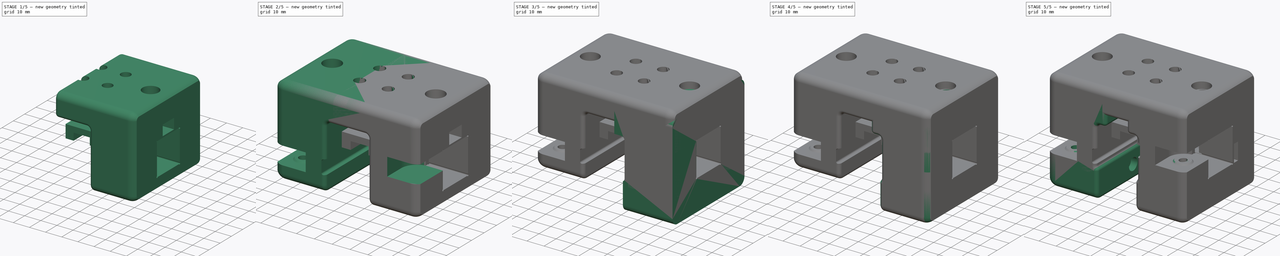
[diagram: build sequence overview — one tinted view per stage of 5, left to right]
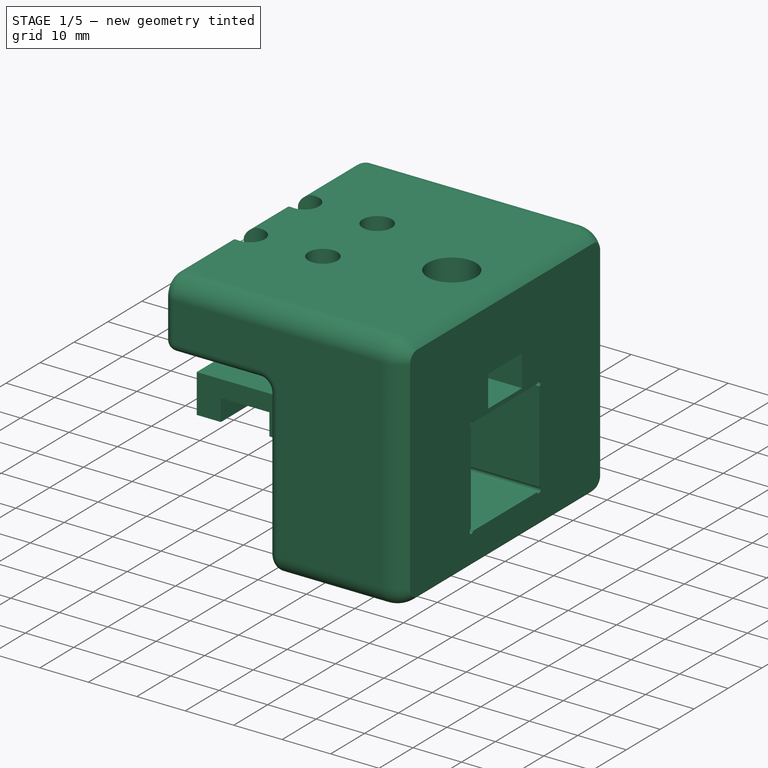
[diagram: stage 1 of 5 — iso view after this stage's code; geometry added in this stage tinted green]
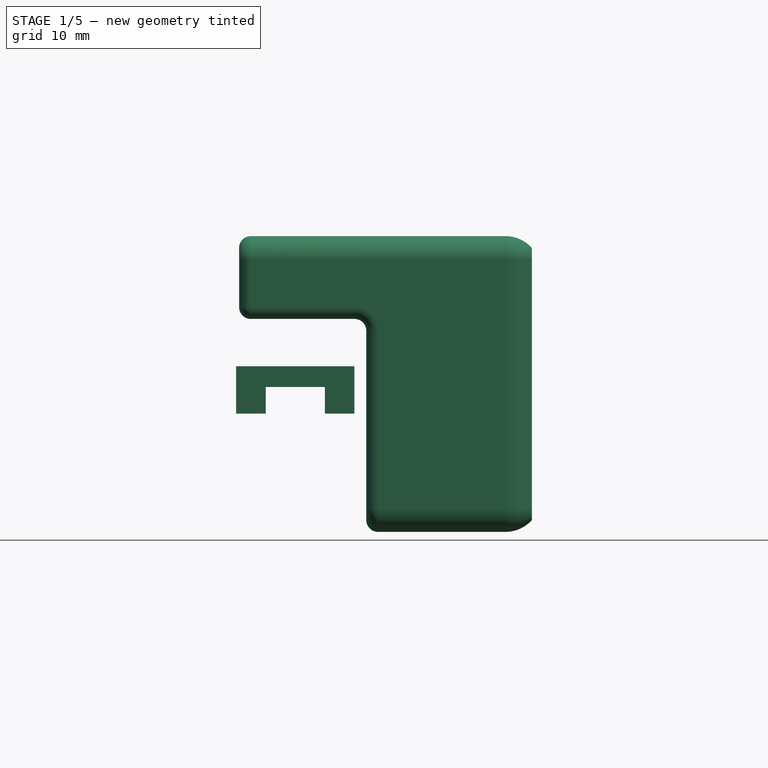
[diagram: stage 1 of 5 — front view after this stage's code; geometry added in this stage tinted green]
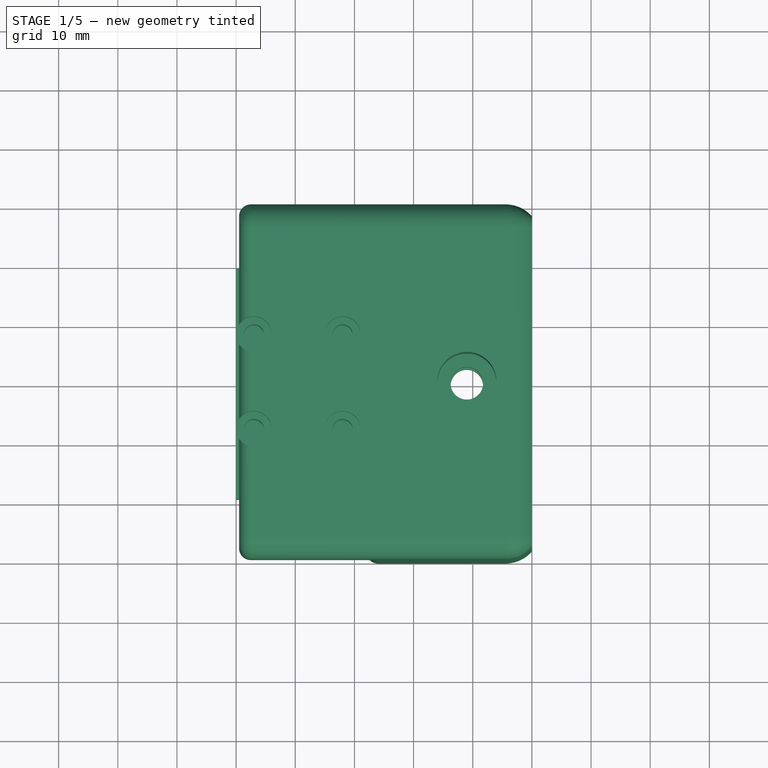
[diagram: stage 1 of 5 — top view after this stage's code; geometry added in this stage tinted green]
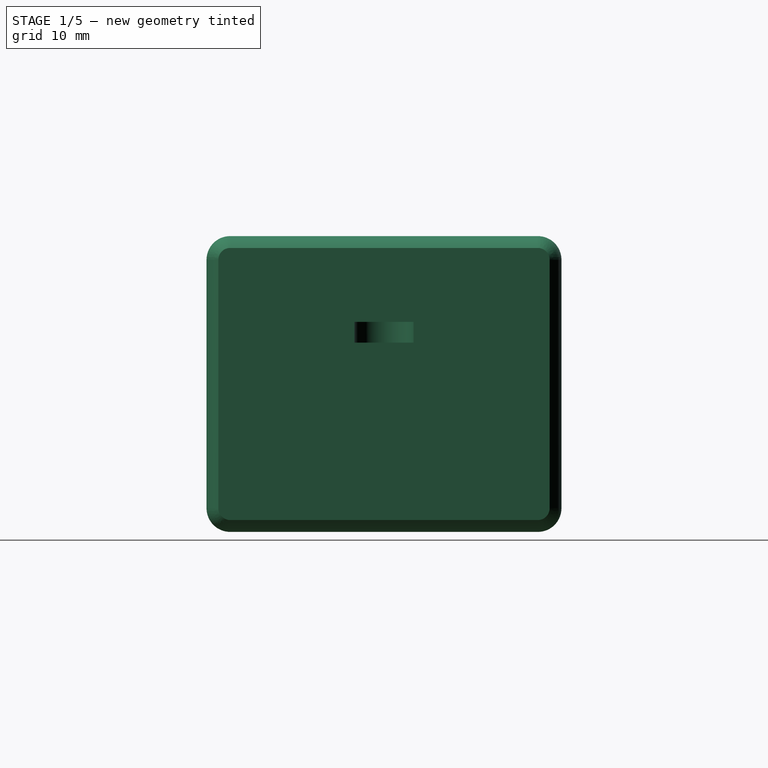
[diagram: stage 1 of 5 — right view after this stage's code; geometry added in this stage tinted green]
FCSTD DOCUMENT  (FreeCAD 1.0R39109 (Git))
Label: y-carriages
License: All rights reserved
LicenseURL: http://en.wikipedia.org/wiki/All_rights_reserved
objects: Sketcher::SketchObject×52, PartDesign::Pocket×24, PartDesign::Groove×10, PartDesign::Revolution×9, PartDesign::Body×9, App::LinkElement×8, PartDesign::FeatureBase×6, PartDesign::Mirrored×4, PartDesign::Fillet×4, App::Link×4, App::Part×4, PartDesign::Pad×3, PartDesign::Chamfer×2, Part::Mirroring×2, PartDesign::LinearPattern×1, PartDesign::MultiTransform×1, App::DocumentObjectGroup×1
note: 295 computed .brp shape members not serialized (recipe doc carries the construction recipe); baked Part::Feature solids carry a one-line shape summary decoded from their .brp
EXTERNAL_REF file=../standard-stuff.FCStd obj=Body084

FEATURE [App::LinkElement] Link_i0
  LinkPlacement = pos=(-19,19,5) rot=(0,0,1;0rad)
  LinkedObject = -> <external ../standard-stuff.FCStd>#Body084
  Placement = pos=(-19,19,5) rot=(0,0,1;0rad)
  _LinkOwner = 285
FEATURE [App::LinkElement] Link_i1
  LinkPlacement = pos=(-31.08,-19,-5) rot=(0,0,1;0rad)
  LinkedObject = -> <external ../standard-stuff.FCStd>#Body084
  Placement = pos=(-31.08,-19,-5) rot=(0,0,1;0rad)
  _LinkOwner = 285
FEATURE [App::Link] Link  label="idlers-vslot-right"
  ElementCount = 2
  ElementList = -> [Link_i0,Link_i1]
  LinkedObject = -> <external ../standard-stuff.FCStd>#Body084
FEATURE [App::Part] Part001  label="main-vslot-right"
  Group = -> [Body121,Part__Mirroring056,Link]
  Origin = -> Origin256
FEATURE [App::LinkElement] Link001_i0
  LinkPlacement = pos=(19,19,-5) rot=(0,0,1;0rad)
  LinkedObject = -> <external ../standard-stuff.FCStd>#Body084
  Placement = pos=(19,19,-5) rot=(0,0,1;0rad)
  _LinkOwner = 388
FEATURE [App::LinkElement] Link001_i1
  LinkPlacement = pos=(31.08,-19,5) rot=(0,0,1;0rad)
  LinkedObject = -> <external ../standard-stuff.FCStd>#Body084
  Placement = pos=(31.08,-19,5) rot=(0,0,1;0rad)
  _LinkOwner = 388
FEATURE [Sketcher::SketchObject] Sketch
  ArcFitTolerance = 1e-06
  AttachmentSupport = -> [YZ_Plane257]
  FullyConstrained = true
  MakeInternals = false
  MapMode = 5
  Placement = pos=(0,0,0) rot=(0.57735,0.57735,0.57735;2.0944rad)
  sketch-geometry (18):
    g0: LineSegment StartX=-30 StartY=28 StartZ=0 EndX=-30 EndY=-14 EndZ=0
    g1: LineSegment StartX=-26 StartY=-18 StartZ=0 EndX=26 EndY=-18 EndZ=0
    g2: LineSegment StartX=30 StartY=-14 StartZ=0 EndX=30 EndY=28 EndZ=0
    g3: LineSegment StartX=26 StartY=32 StartZ=0 EndX=-26 EndY=32 EndZ=0
    g4: ArcOfCircle CenterX=26 CenterY=28 CenterZ=0 NormalX=0 NormalY=0 NormalZ=1 AngleXU=0 Radius=4 StartAngle=0 EndAngle=1.5708
    g5: GeomPoint [constr] X=30 Y=32 Z=0
    g6: ArcOfCircle CenterX=26 CenterY=-14 CenterZ=0 NormalX=0 NormalY=0 NormalZ=1 AngleXU=0 Radius=4 StartAngle=4.71239 EndAngle=6.28319
    g7: GeomPoint [constr] X=30 Y=-18 Z=0
    g8: ArcOfCircle CenterX=-26 CenterY=-14 CenterZ=0 NormalX=0 NormalY=0 NormalZ=1 AngleXU=0 Radius=4 StartAngle=3.14159 EndAngle=4.71239
    g9: GeomPoint [constr] X=-30 Y=-18 Z=0
    g10: ArcOfCircle CenterX=-26 CenterY=28 CenterZ=0 NormalX=0 NormalY=0 NormalZ=1 AngleXU=0 Radius=4 StartAngle=1.5708 EndAngle=3.14159
    g11: GeomPoint [constr] X=-30 Y=32 Z=0
    g12: LineSegment [constr] StartX=-10 StartY=10 StartZ=0 EndX=-10 EndY=-10 EndZ=0
    g13: LineSegment [constr] StartX=-10 StartY=-10 StartZ=0 EndX=10 EndY=-10 EndZ=0
    g14: LineSegment [constr] StartX=10 StartY=-10 StartZ=0 EndX=10 EndY=10 EndZ=0
    g15: LineSegment [constr] StartX=10 StartY=10 StartZ=0 EndX=-10 EndY=10 EndZ=0
    g16: GeomPoint [constr] X=0 Y=20 Z=0
    g17: GeomPoint [constr] X=0 Y=32 Z=0
  constraints (42):
    c: Vertical(g0)
    c: Vertical(g2)
    c: Horizontal(g1)
    c: Symmetric(g5,g11,g-2)
    c: PointOnObject(g5,g2)
    c: PointOnObject(g5,g3)
    c: Tangent(g2,g4) = -1.5708
    c: Tangent(g3,g4) = -1.5708
    c: PointOnObject(g7,g1)
    c: PointOnObject(g7,g2)
    c: Tangent(g1,g6) = -1.5708
    c: Tangent(g2,g6) = -1.5708
    c: PointOnObject(g9,g0)
    c: PointOnObject(g9,g1)
    c: Tangent(g0,g8) = -1.5708
    c: Tangent(g1,g8) = -1.5708
    c: PointOnObject(g11,g0)
    c: PointOnObject(g11,g3)
    c: Tangent(g0,g10) = -1.5708
    c: Tangent(g3,g10) = -1.5708
    c: Equal(g10,g4)
    c: Equal(g4,g6)
    c: Equal(g6,g8)
    c: Radius(g8) = 4
    c: Coincident(g12,g13)
    c: Coincident(g13,g14)
    c: Coincident(g14,g15)
    c: Coincident(g15,g12)
    c: Vertical(g12)
    c: Vertical(g14)
    c: Horizontal(g13)
    c: Horizontal(g15)
    c: Symmetric(g13,g12,g-1)
    c: Equal(g14,g15)
    c: DistanceX(g15,g15) = 20
    c: DistanceY(g7,g13) = 8
    c: DistanceX(g11,g5) = 60
    c: PointOnObject(g16,g-2)
    c: DistanceY(g16) = 20
    c: PointOnObject(g17,g3)
    c: PointOnObject(g17,g-2)
    c: DistanceY(g16,g17) = 12
FEATURE [Sketcher::SketchObject] Sketch468
  ArcFitTolerance = 1e-06
  AttachmentSupport = -> [XZ_Plane293]
  FullyConstrained = true
  MakeInternals = false
  MapMode = 5
  Placement = pos=(0,0,0) rot=(1,0,0;1.5708rad)
  sketch-geometry (8):
    g0: LineSegment StartX=-10 StartY=10 StartZ=0 EndX=-10 EndY=2 EndZ=0
    g1: LineSegment StartX=-10 StartY=2 StartZ=0 EndX=-5 EndY=2 EndZ=0
    g2: LineSegment StartX=10 StartY=2 StartZ=0 EndX=10 EndY=10 EndZ=0
    g3: LineSegment StartX=10 StartY=10 StartZ=0 EndX=-10 EndY=10 EndZ=0
    g4: LineSegment StartX=-5 StartY=2 StartZ=0 EndX=-5 EndY=6.5 EndZ=0
    g5: LineSegment StartX=-5 StartY=6.5 StartZ=0 EndX=5 EndY=6.5 EndZ=0
    g6: LineSegment StartX=5 StartY=6.5 StartZ=0 EndX=5 EndY=2 EndZ=0
    g7: LineSegment StartX=5 StartY=2 StartZ=0 EndX=10 EndY=2 EndZ=0
  constraints (23):
    c: Coincident(g0,g1)
    c: Coincident(g7,g2)
    c: Coincident(g2,g3)
    c: Coincident(g3,g0)
    c: Vertical(g0)
    c: Vertical(g2)
    c: Horizontal(g1)
    c: Symmetric(g2,g0,g-2)
    c: DistanceX(g3,g3) = 20
    c: DistanceY(g2) = 10
    c: DistanceY(g7) = 2
    c: Vertical(g4)
    c: Coincident(g4,g5)
    c: Coincident(g5,g6)
    c: PointOnObject(g6,g7)
    c: Vertical(g6)
    c: Coincident(g1,g4)
    c: PointOnObject(g7,g6)
    c: Symmetric(g5,g4,g-2)
    c: DistanceX(g5,g5) = 10
    c: DistanceY(g5) = 6.5
    c: Horizontal(g7)
    c: Horizontal(g1,g6)
FEATURE [PartDesign::Pad] Pad102
  Direction = (0,-1,2e-16)
  Length = 39
  Length2 = 10
  Midplane = true
  Placement = pos=(0,0,0) rot=(1,0,0;1.5708rad)
  Profile = -> Sketch468
  ReferenceAxis = -> Sketch468 [N_Axis]
  Suppressed = false
  Type = 0
FEATURE [PartDesign::Body] Body154  label="carriage-mgn9h-drv"
  AllowCompound = false
  Group = -> [Sketch468,Pad102]
  Origin = -> Origin294
  Tip = -> Pad102
FEATURE [PartDesign::Pad] Pad
  Direction = (1,0,0)
  Length = 40
  Length2 = 9.5
  Placement = pos=(0,0,0) rot=(1,1,1;2.0944rad)
  Profile = -> Sketch
  ReferenceAxis = -> Sketch [N_Axis]
  Suppressed = false
  Type = 4
FEATURE [Sketcher::SketchObject] Sketch469
  ArcFitTolerance = 0
  AttachmentOffset = pos=(0,0,18) rot=(0,0,1;0rad)
  AttachmentSupport = -> [YZ_Plane257]
  FullyConstrained = true
  MakeInternals = false
  MapMode = 5
  Placement = pos=(18,0,0) rot=(0.57735,0.57735,0.57735;2.0944rad)
  sketch-geometry (20):
    g0: LineSegment StartX=-9.4043 StartY=10.1 StartZ=0 EndX=9.4043 EndY=10.1 EndZ=0
    g1: LineSegment StartX=10.1 StartY=9.4043 StartZ=0 EndX=10.1 EndY=-9.4043 EndZ=0
    g2: LineSegment StartX=9.4043 StartY=-10.1 StartZ=0 EndX=-9.4043 EndY=-10.1 EndZ=0
    g3: LineSegment StartX=-10.1 StartY=-9.4043 StartZ=0 EndX=-10.1 EndY=9.4043 EndZ=0
    g4: ArcOfCircle CenterX=-9.92607 CenterY=9.92607 CenterZ=0 NormalX=0 NormalY=0 NormalZ=1 AngleXU=0 Radius=0.55 StartAngle=0.321751 EndAngle=4.39064
    g5: ArcOfCircle CenterX=9.92607 CenterY=9.92607 CenterZ=0 NormalX=0 NormalY=0 NormalZ=1 AngleXU=0 Radius=0.55 StartAngle=5.03414 EndAngle=9.10303
    g6: ArcOfCircle CenterX=9.92607 CenterY=-9.92607 CenterZ=0 NormalX=0 NormalY=0 NormalZ=1 AngleXU=0 Radius=0.55 StartAngle=3.46334 EndAngle=7.53223
    g7: ArcOfCircle CenterX=-9.92607 CenterY=-9.92607 CenterZ=0 NormalX=0 NormalY=0 NormalZ=1 AngleXU=0 Radius=0.55 StartAngle=1.89255 EndAngle=5.96143
    g8: LineSegment [constr] StartX=-10.1 StartY=9.4043 StartZ=0 EndX=-9.4043 EndY=10.1 EndZ=0
    g9: LineSegment [constr] StartX=9.4043 StartY=10.1 StartZ=0 EndX=10.1 EndY=9.4043 EndZ=0
    g10: LineSegment [constr] StartX=9.4043 StartY=-10.1 StartZ=0 EndX=10.1 EndY=-9.4043 EndZ=0
    g11: LineSegment [constr] StartX=-10.1 StartY=-9.4043 StartZ=0 EndX=-9.4043 EndY=-10.1 EndZ=0
    g12: GeomPoint [constr] X=-10.1 Y=10.1 Z=0
    g13: GeomPoint [constr] X=-9.75215 Y=9.75215 Z=0
    g14: GeomPoint [constr] X=9.75215 Y=9.75215 Z=0
    g15: GeomPoint [constr] X=10.1 Y=10.1 Z=0
    g16: GeomPoint [constr] X=-10.1 Y=-10.1 Z=0
    g17: GeomPoint [constr] X=-9.75215 Y=-9.75215 Z=0
    g18: GeomPoint [constr] X=10.1 Y=-10.1 Z=0
    g19: GeomPoint [constr] X=9.75215 Y=-9.75215 Z=0
  constraints (43):
    c: Horizontal(g0)
    c: Horizontal(g2)
    c: Vertical(g1)
    c: Vertical(g3)
    c: Coincident(g0,g4)
    c: Coincident(g3,g4)
    c: Coincident(g1,g5)
    c: Coincident(g0,g5)
    c: Coincident(g2,g6)
    c: Coincident(g1,g6)
    c: Coincident(g2,g7)
    c: Coincident(g3,g7)
    c: Coincident(g8,g3)
    c: Coincident(g8,g0)
    c: Coincident(g9,g0)
    c: Coincident(g9,g1)
    c: Coincident(g10,g2)
    c: Coincident(g10,g1)
    c: Coincident(g11,g3)
    c: Coincident(g11,g2)
    c: Equal(g6,g7)
    c: Equal(g7,g4)
    c: Equal(g4,g5)
    c: Parallel(g8,g10)
    c: Parallel(g11,g9)
    c: Perpendicular(g10,g9)
    c: Angle(g10) = 0.785398
    c: Radius(g4) = 0.55
    c: PointOnObject(g12,g0)
    c: Symmetric(g3,g0,g13)
    c: Symmetric(g13,g12,g4)
    c: Symmetric(g1,g0,g14)
    c: PointOnObject(g15,g1)
    c: Symmetric(g14,g15,g5)
    c: Symmetric(g3,g2,g17)
    c: PointOnObject(g16,g2)
    c: Symmetric(g16,g17,g7)
    c: PointOnObject(g18,g1)
    c: Symmetric(g18,g19,g6)
    c: Symmetric(g2,g1,g19)
    c: Symmetric(g18,g12,g-1)
    c: DistanceX(g16,g18) = 20.2
    c: DistanceY(g16,g12) = 20.2
FEATURE [PartDesign::Pocket] Pocket
  BaseFeature = -> Pad
  Direction = (-1,0,0)
  Length = 5
  Length2 = 5
  Placement = pos=(0,0,0) rot=(1,1,1;2.0944rad)
  Profile = -> Sketch469
  ReferenceAxis = -> Sketch469 [N_Axis]
  Reversed = true
  Suppressed = false
  Type = 1
FEATURE [Sketcher::SketchObject] Sketch470
  ArcFitTolerance = 1e-06
  AttachmentSupport = -> [XZ_Plane257]
  FullyConstrained = true
  MakeInternals = false
  MapMode = 5
  Placement = pos=(0,0,0) rot=(1,0,0;1.5708rad)
  sketch-geometry (10):
    g0: LineSegment [constr] StartX=-10 StartY=10 StartZ=0 EndX=-10 EndY=-10 EndZ=0
    g1: LineSegment [constr] StartX=-10 StartY=-10 StartZ=0 EndX=10 EndY=-10 EndZ=0
    g2: LineSegment [constr] StartX=10 StartY=-10 StartZ=0 EndX=10 EndY=10 EndZ=0
    g3: LineSegment [constr] StartX=10 StartY=10 StartZ=0 EndX=-10 EndY=10 EndZ=0
    g4: LineSegment StartX=-10 StartY=18 StartZ=0 EndX=-10 EndY=-28 EndZ=0
    g5: LineSegment StartX=-10 StartY=-28 StartZ=0 EndX=12 EndY=-28 EndZ=0
    g6: LineSegment StartX=12 StartY=-28 StartZ=0 EndX=12 EndY=16 EndZ=0
    g7: LineSegment StartX=10 StartY=18 StartZ=0 EndX=-10 EndY=18 EndZ=0
    g8: ArcOfCircle CenterX=10 CenterY=16 CenterZ=0 NormalX=0 NormalY=0 NormalZ=1 AngleXU=0 Radius=2 StartAngle=0 EndAngle=1.5708
    g9: GeomPoint [constr] X=12 Y=18 Z=0
  constraints (27):
    c: Coincident(g0,g1)
    c: Coincident(g1,g2)
    c: Coincident(g2,g3)
    c: Coincident(g3,g0)
    c: Vertical(g0)
    c: Vertical(g2)
    c: Horizontal(g1)
    c: Horizontal(g3)
    c: Symmetric(g1,g0,g-1)
    c: Equal(g2,g3)
    c: DistanceX(g3,g3) = 20
    c: Coincident(g4,g5)
    c: Coincident(g5,g6)
    c: Coincident(g7,g4)
    c: Vertical(g4)
    c: Vertical(g6)
    c: Horizontal(g5)
    c: Horizontal(g7)
    c: DistanceX(g2,g9) = 2
    c: PointOnObject(g0,g4)
    c: DistanceY(g5) = -28
    c: DistanceY(g2,g9) = 8
    c: PointOnObject(g9,g6)
    c: PointOnObject(g9,g7)
    c: Tangent(g6,g8) = -1.5708
    c: Tangent(g7,g8) = -1.5708
    c: Radius(g8) = 2
FEATURE [PartDesign::Pocket] Pocket181
  BaseFeature = -> Pocket
  Direction = (0,1,-2e-16)
  Length = 5
  Length2 = 5
  Midplane = true
  Placement = pos=(0,0,0) rot=(1,1,1;2.0944rad)
  Profile = -> Sketch470
  ReferenceAxis = -> Sketch470 [N_Axis]
  Suppressed = false
  Type = 1
FEATURE [Sketcher::SketchObject] Sketch471
  ArcFitTolerance = 1e-06
  AttachmentSupport = -> [XZ_Plane257]
  FullyConstrained = true
  MakeInternals = false
  MapMode = 5
  Placement = pos=(0,0,0) rot=(1,0,0;1.5708rad)
  sketch-geometry (4):
    g0: LineSegment StartX=-11 StartY=20 StartZ=0 EndX=-11 EndY=0 EndZ=0
    g1: LineSegment StartX=-11 StartY=0 StartZ=0 EndX=11 EndY=0 EndZ=0
    g2: LineSegment StartX=11 StartY=0 StartZ=0 EndX=11 EndY=20 EndZ=0
    g3: LineSegment StartX=11 StartY=20 StartZ=0 EndX=-11 EndY=20 EndZ=0
  constraints (11):
    c: Coincident(g0,g1)
    c: Coincident(g1,g2)
    c: Coincident(g2,g3)
    c: Coincident(g3,g0)
    c: Vertical(g0)
    c: Vertical(g2)
    c: Horizontal(g1)
    c: Symmetric(g2,g0,g-2)
    c: DistanceX(g3,g3) = 22
    c: DistanceY(g2) = 20
    c: PointOnObject(g1,g-1)
FEATURE [PartDesign::Pocket] Pocket182
  BaseFeature = -> Pocket181
  Direction = (0,1,-2e-16)
  Length = 40
  Length2 = 5
  Midplane = true
  Placement = pos=(0,0,0) rot=(1,1,1;2.0944rad)
  Profile = -> Sketch471
  ReferenceAxis = -> Sketch471 [N_Axis]
  Suppressed = false
  Type = 0
FEATURE [Sketcher::SketchObject] Sketch472
  ArcFitTolerance = 1e-06
  AttachmentOffset = pos=(8,0,8) rot=(0,0,1;0rad)
  AttachmentSupport = -> [YZ_Plane257]
  FullyConstrained = true
  MakeInternals = false
  MapMode = 5
  Placement = pos=(8,8,0) rot=(0.57735,0.57735,0.57735;2.0944rad)
  sketch-geometry (6):
    g0: LineSegment StartX=0 StartY=32 StartZ=0 EndX=3 EndY=32 EndZ=0
    g1: LineSegment StartX=3 StartY=32 StartZ=0 EndX=3 EndY=28 EndZ=0
    g2: LineSegment StartX=3 StartY=28 StartZ=0 EndX=1.7 EndY=28 EndZ=0
    g3: LineSegment StartX=1.7 StartY=28 StartZ=0 EndX=1.7 EndY=20 EndZ=0
    g4: LineSegment StartX=1.7 StartY=20 StartZ=0 EndX=0 EndY=20 EndZ=0
    g5: LineSegment StartX=0 StartY=20 StartZ=0 EndX=0 EndY=32 EndZ=0
  constraints (18):
    c: PointOnObject(g0,g-2)
    c: Horizontal(g0)
    c: Coincident(g0,g1)
    c: Vertical(g1)
    c: Coincident(g1,g2)
    c: Horizontal(g2)
    c: Coincident(g2,g3)
    c: Vertical(g3)
    c: Coincident(g3,g4)
    c: PointOnObject(g4,g-2)
    c: Horizontal(g4)
    c: Coincident(g4,g5)
    c: Coincident(g5,g0)
    c: DistanceY(g4) = 20
    c: DistanceX(g4,g4) = 1.7
    c: DistanceY(g3,g3) = 8
    c: DistanceX(g0,g0) = 3
    c: DistanceY(g0) = 32
FEATURE [PartDesign::Groove] Groove
  Angle = 360
  Angle2 = 60
  Axis = (0,0,1)
  Base = (8,8,0)
  BaseFeature = -> Pocket182
  Placement = pos=(0,0,0) rot=(1,1,1;2.0944rad)
  Profile = -> Sketch472
  ReferenceAxis = -> Sketch472 [V_Axis]
  Suppressed = false
  Type = 0
FEATURE [PartDesign::LinearPattern] LinearPattern
  Direction = -> X_Axis258
  Length = 15
  Mode = 0
  Occurrences = 2
  Offset = 15
  Placement = pos=(0,0,0) rot=(1,1,1;2.0944rad)
  Reversed = true
  Suppressed = false
  TransformMode = 0
FEATURE [PartDesign::Mirrored] Mirrored
  MirrorPlane = -> XZ_Plane257
  Placement = pos=(0,0,0) rot=(1,1,1;2.0944rad)
  Suppressed = false
  TransformMode = 0
FEATURE [PartDesign::MultiTransform] MultiTransform
  BaseFeature = -> Groove
  Originals = -> [Groove]
  Placement = pos=(0,0,0) rot=(1,1,1;2.0944rad)
  Suppressed = false
  TransformMode = 0
  Transformations = -> [LinearPattern,Mirrored]
FEATURE [Sketcher::SketchObject] Sketch473
  ArcFitTolerance = 1e-06
  AttachmentOffset = pos=(29,0,0) rot=(0,0,1;0rad)
  AttachmentSupport = -> [XZ_Plane257]
  FullyConstrained = true
  MakeInternals = false
  MapMode = 5
  Placement = pos=(29,0,0) rot=(1,0,0;1.5708rad)
  sketch-geometry (6):
    g0: LineSegment StartX=0 StartY=10 StartZ=0 EndX=0 EndY=32 EndZ=0
    g1: LineSegment StartX=0 StartY=32 StartZ=0 EndX=5 EndY=32 EndZ=0
    g2: LineSegment StartX=5 StartY=32 StartZ=0 EndX=5 EndY=14 EndZ=0
    g3: LineSegment StartX=5 StartY=14 StartZ=0 EndX=2.75 EndY=14 EndZ=0
    g4: LineSegment StartX=2.75 StartY=14 StartZ=0 EndX=2.75 EndY=10 EndZ=0
    g5: LineSegment StartX=2.75 StartY=10 StartZ=0 EndX=0 EndY=10 EndZ=0
  constraints (18):
    c: Vertical(g0)
    c: Coincident(g0,g1)
    c: Horizontal(g1)
    c: Coincident(g1,g2)
    c: Vertical(g2)
    c: Coincident(g2,g3)
    c: Horizontal(g3)
    c: Coincident(g3,g4)
    c: Vertical(g4)
    c: Coincident(g4,g5)
    c: Coincident(g5,g0)
    c: Horizontal(g5)
    c: DistanceY(g4,g4) = 4
    c: DistanceX(g1,g1) = 5
    c: DistanceY(g0) = 10
    c: DistanceX(g5,g5) = 2.75
    c: DistanceY(g1) = 32
    c: PointOnObject(g0,g-2)
FEATURE [PartDesign::Groove] Groove011
  Angle = 360
  Angle2 = 60
  Axis = (0,2e-16,1)
  Base = (29,0,0)
  BaseFeature = -> MultiTransform
  Placement = pos=(0,0,0) rot=(1,1,1;2.0944rad)
  Profile = -> Sketch473
  ReferenceAxis = -> Sketch473 [V_Axis]
  Suppressed = false
  Type = 0
FEATURE [PartDesign::Mirrored] Mirrored032
  BaseFeature = -> Groove011
  MirrorPlane = -> XY_Plane257
  Originals = -> [Groove011]
  Placement = pos=(0,0,0) rot=(1,1,1;2.0944rad)
  Suppressed = false
  TransformMode = 0
FEATURE [PartDesign::Chamfer] Chamfer
  Angle = 45
  Base = -> Mirrored032 [Edge40]
  BaseFeature = -> Mirrored032
  ChamferType = 0
  FlipDirection = false
  Placement = pos=(0,0,0) rot=(1,1,1;2.0944rad)
  Size = 2
  Size2 = 1
  SupportTransform = false
  Suppressed = false
  UseAllEdges = false
FEATURE [PartDesign::Fillet] Fillet002
  Base = -> Chamfer [Edge70]
  BaseFeature = -> Chamfer
  Placement = pos=(0,0,0) rot=(1,1,1;2.0944rad)
  Radius = 6
  SupportTransform = false
  Suppressed = false
  UseAllEdges = false
FEATURE [PartDesign::Fillet] Fillet003
  Base = -> Fillet002 [Edge3,Edge6,Edge33,Edge29,Edge28,Edge38]
  BaseFeature = -> Fillet002
  Placement = pos=(0,0,0) rot=(1,1,1;2.0944rad)
  Radius = 2
  SupportTransform = false
  Suppressed = false
  UseAllEdges = false
FEATURE [PartDesign::Body] Body158  label="mgn9h-carriage-right"
  AllowCompound = false
  Group = -> [Clone072]
  Origin = -> Origin300
  Placement = pos=(-0.5,0,10) rot=(0,0,1;0rad)
  Tip = -> Clone072
FEATURE [Sketcher::SketchObject] Sketch488
  ArcFitTolerance = 1e-06
  AttachmentSupport = -> [XZ_Plane257]
  FullyConstrained = true
  MakeInternals = false
  MapMode = 5
  Placement = pos=(0,0,0) rot=(1,0,0;1.5708rad)
  sketch-geometry (6):
    g0: LineSegment StartX=40 StartY=11 StartZ=0 EndX=33 EndY=11 EndZ=0
    g1: LineSegment StartX=33 StartY=11 StartZ=0 EndX=33 EndY=14 EndZ=0
    g2: LineSegment StartX=33 StartY=14 StartZ=0 EndX=29 EndY=14 EndZ=0
    g3: LineSegment StartX=29 StartY=14 StartZ=0 EndX=29 EndY=17.5 EndZ=0
    g4: LineSegment StartX=29 StartY=17.5 StartZ=0 EndX=40 EndY=17.5 EndZ=0
    g5: LineSegment StartX=40 StartY=17.5 StartZ=0 EndX=40 EndY=11 EndZ=0
  constraints (18):
    c: Horizontal(g0)
    c: Coincident(g0,g1)
    c: Vertical(g1)
    c: Coincident(g1,g2)
    c: Horizontal(g2)
    c: Coincident(g2,g3)
    c: Vertical(g3)
    c: Coincident(g3,g4)
    c: Horizontal(g4)
    c: Coincident(g4,g5)
    c: Coincident(g5,g0)
    c: Vertical(g5)
    c: DistanceX(g4) = 40
    c: DistanceY(g0) = 11
    c: DistanceY(g5,g5) = 6.5
    c: DistanceX(g0,g0) = 7
    c: DistanceY(g1,g1) = 3
    c: DistanceX(g2) = 29
FEATURE [PartDesign::Pocket] Pocket189
  BaseFeature = -> Fillet003
  Direction = (0,1,-2e-16)
  Length = 10
  Length2 = 5
  Midplane = true
  Placement = pos=(0,0,0) rot=(1,1,1;2.0944rad)
  Profile = -> Sketch488
  ReferenceAxis = -> Sketch488 [N_Axis]
  Refine = true
  Suppressed = false
  Type = 0
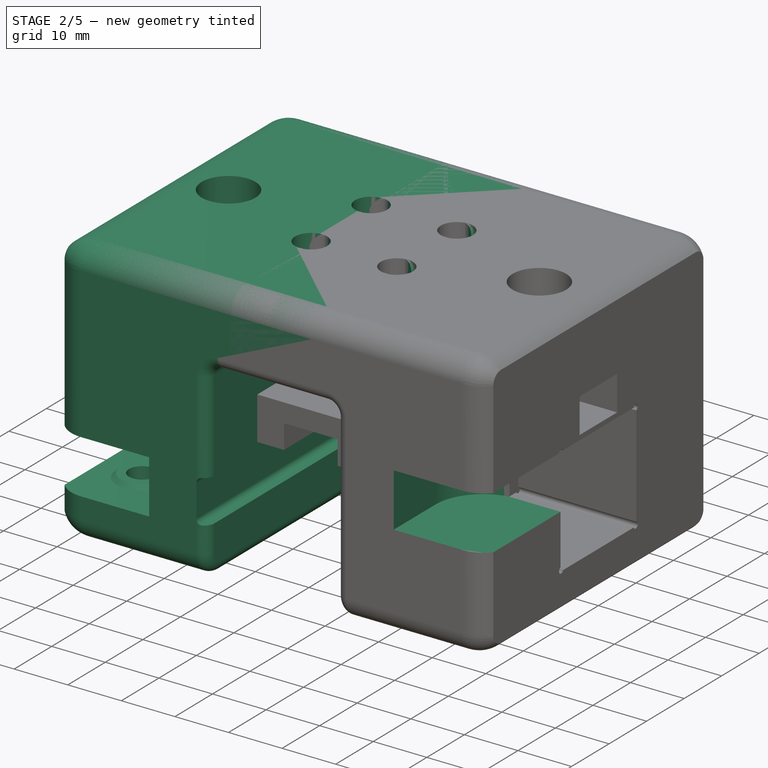
[diagram: stage 2 of 5 — iso view after this stage's code; geometry added in this stage tinted green]
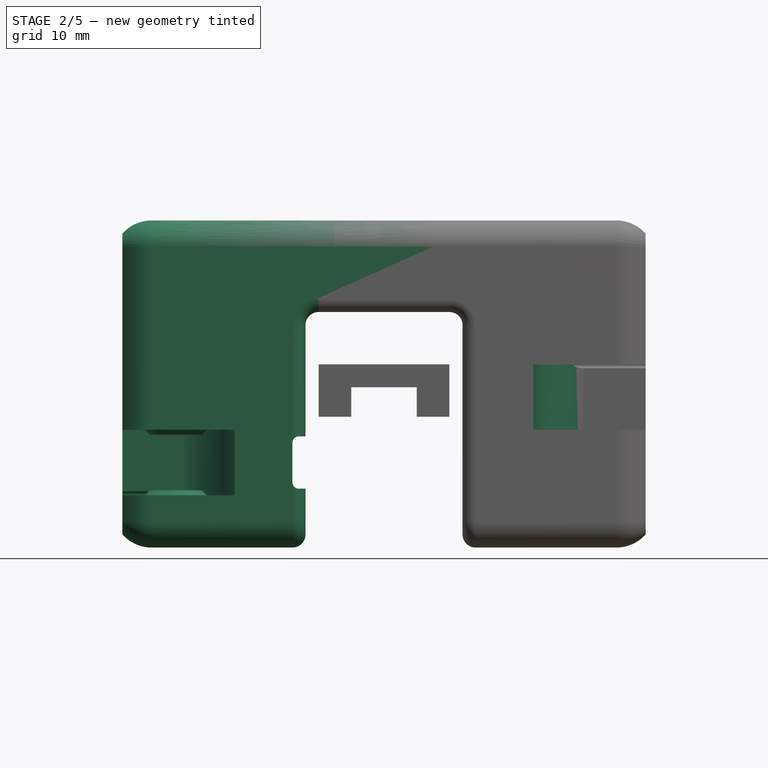
[diagram: stage 2 of 5 — front view after this stage's code; geometry added in this stage tinted green]
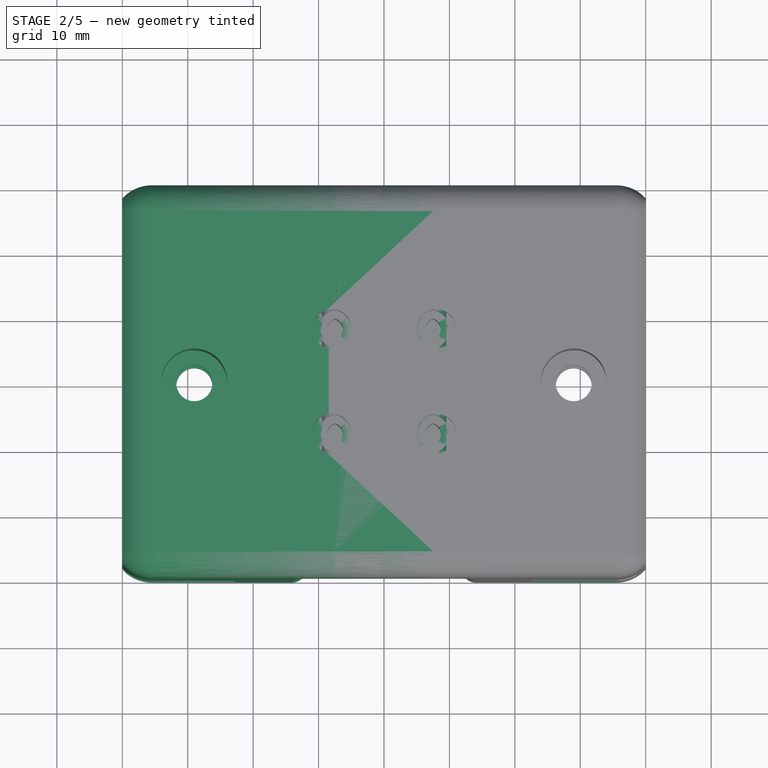
[diagram: stage 2 of 5 — top view after this stage's code; geometry added in this stage tinted green]
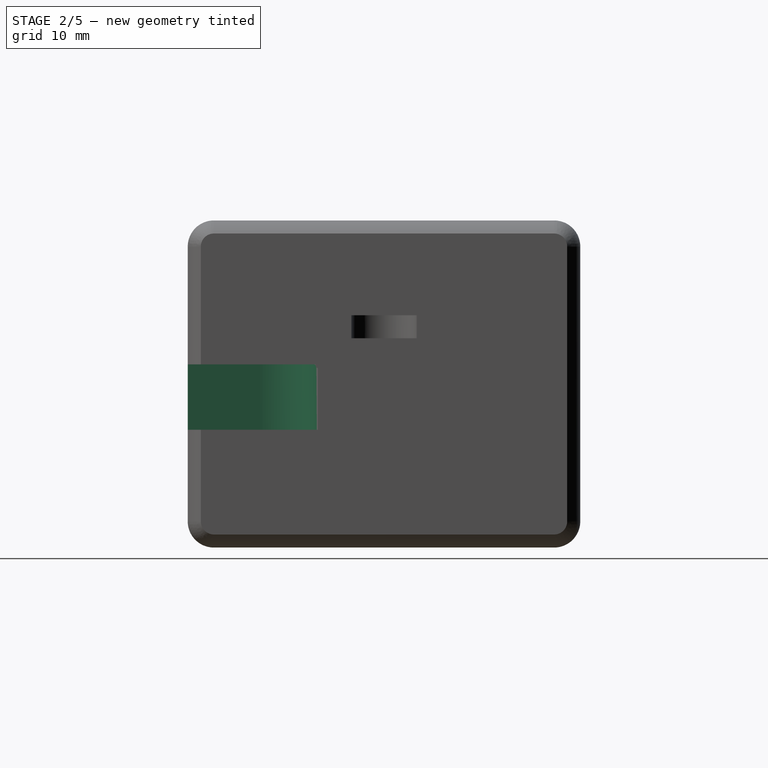
[diagram: stage 2 of 5 — right view after this stage's code; geometry added in this stage tinted green]
FEATURE [Sketcher::SketchObject] Sketch474
  ArcFitTolerance = 0
  AttachmentOffset = pos=(0,0,5) rot=(0,0,1;0rad)
  AttachmentSupport = -> [XY_Plane294]
  FullyConstrained = true
  MakeInternals = false
  MapMode = 5
  Placement = pos=(0,0,5) rot=(0,0,1;0rad)
  sketch-geometry (5):
    g0: ArcOfCircle CenterX=31.83 CenterY=-19 CenterZ=0 NormalX=0 NormalY=0 NormalZ=1 AngleXU=0 Radius=9 StartAngle=1.5708 EndAngle=3.14159
    g1: LineSegment StartX=22.83 StartY=-19 StartZ=0 EndX=22.83 EndY=-30 EndZ=0
    g2: LineSegment StartX=22.83 StartY=-30 StartZ=0 EndX=40.83 EndY=-30 EndZ=0
    g3: LineSegment StartX=40.83 StartY=-30 StartZ=0 EndX=40.83 EndY=-10 EndZ=0
    g4: LineSegment StartX=40.83 StartY=-10 StartZ=0 EndX=31.83 EndY=-10 EndZ=0
  constraints (14):
    c: Diameter(g0) = 18
    c: Vertical(g1)
    c: Coincident(g2,g1)
    c: Horizontal(g2)
    c: Coincident(g3,g2)
    c: Vertical(g3)
    c: Coincident(g4,g3)
    c: Horizontal(g4)
    c: Tangent(g0,g1) = -1.5708
    c: Tangent(g0,g4) = -1.5708
    c: Tangent(g3,g0)
    c: DistanceY(g1) = -30
    c: DistanceY(g0) = -19
    c: DistanceX(g0) = 31.83
FEATURE [Sketcher::SketchObject] Sketch475
  ArcFitTolerance = 0
  AttachmentOffset = pos=(0,0,-5) rot=(0,0,1;0rad)
  AttachmentSupport = -> [XY_Plane294]
  FullyConstrained = true
  MakeInternals = false
  MapMode = 5
  Placement = pos=(0,0,-5) rot=(0,0,1;0rad)
  sketch-geometry (10):
    g0: ArcOfCircle CenterX=19 CenterY=19 CenterZ=0 NormalX=0 NormalY=0 NormalZ=1 AngleXU=0 Radius=9 StartAngle=3.14159 EndAngle=5.25009
    g1: LineSegment StartX=10 StartY=19 StartZ=0 EndX=10 EndY=30 EndZ=0
    g2: LineSegment StartX=10 StartY=30 StartZ=0 EndX=28 EndY=30 EndZ=0
    g3: LineSegment StartX=28 StartY=30 StartZ=0 EndX=28 EndY=19 EndZ=0
    g4: LineSegment StartX=23.6095 StartY=11.27 StartZ=0 EndX=40 EndY=11.27 EndZ=0
    g5: LineSegment StartX=40 StartY=11.27 StartZ=0 EndX=40 EndY=14.65 EndZ=0
    g6: LineSegment StartX=40 StartY=14.65 StartZ=0 EndX=26.8789 EndY=14.65 EndZ=0
    g7: ArcOfCircle CenterX=19 CenterY=19 CenterZ=0 NormalX=0 NormalY=0 NormalZ=1 AngleXU=0 Radius=9 StartAngle=5.77873 EndAngle=6.28319
    g8: GeomPoint [constr] X=19 Y=12.9 Z=0
    g9: Circle [constr] CenterX=19 CenterY=19 CenterZ=0 NormalX=0 NormalY=0 NormalZ=1 AngleXU=0 Radius=6.1
  constraints (27):
    c: Diameter(g0) = 18
    c: Vertical(g1)
    c: Coincident(g2,g1)
    c: Horizontal(g2)
    c: Coincident(g3,g2)
    c: Vertical(g3)
    c: DistanceY(g2) = 30
    c: Tangent(g0,g1) = 1.5708
    c: Horizontal(g4)
    c: Coincident(g5,g4)
    c: Vertical(g5)
    c: Coincident(g6,g5)
    c: Horizontal(g6)
    c: Equal(g0,g7)
    c: Coincident(g0,g4)
    c: Coincident(g7,g6)
    c: Coincident(g0,g7)
    c: Tangent(g7,g3) = 1.5708
    c: DistanceX(g5) = 40
    c: Vertical(g8,g0)
    c: DistanceY(g0,g8) = 1.63
    c: DistanceY(g8,g6) = 1.75
    c: Coincident(g9,g0)
    c: Diameter(g9) = 12.2
    c: PointOnObject(g8,g9)
    c: DistanceX(g0) = 19
    c: DistanceY(g0) = 19
FEATURE [Sketcher::SketchObject] Sketch476
  ArcFitTolerance = 0
  AttachmentOffset = pos=(0,0,19) rot=(0,0,1;0rad)
  AttachmentSupport = -> [XZ_Plane294]
  FullyConstrained = true
  MakeInternals = false
  MapMode = 5
  Placement = pos=(0,-19,4.2e-15) rot=(1,0,0;1.5708rad)
  sketch-geometry (10):
    g0: GeomPoint [constr] X=31.83 Y=1e-16 Z=0
    g1: GeomPoint [constr] X=31.83 Y=5 Z=0
    g2: LineSegment StartX=31.83 StartY=1e-16 StartZ=0 EndX=31.83 EndY=0.75 EndZ=0
    g3: LineSegment StartX=31.83 StartY=0.75 StartZ=0 EndX=35.83 EndY=0.75 EndZ=0
    g4: LineSegment StartX=35.83 StartY=0.75 StartZ=0 EndX=36.58 EndY=1e-16 EndZ=0
    g5: LineSegment StartX=36.58 StartY=1e-16 StartZ=0 EndX=31.83 EndY=1e-16 EndZ=0
    g6: LineSegment StartX=31.83 StartY=10 StartZ=0 EndX=31.83 EndY=9.25 EndZ=0
    g7: LineSegment StartX=31.83 StartY=9.25 StartZ=0 EndX=35.83 EndY=9.25 EndZ=0
    g8: LineSegment StartX=35.83 StartY=9.25 StartZ=0 EndX=36.58 EndY=10 EndZ=0
    g9: LineSegment StartX=36.58 StartY=10 StartZ=0 EndX=31.83 EndY=10 EndZ=0
  constraints (26):
    c: Vertical(g1,g0)
    c: Coincident(g2,g0)
    c: Vertical(g2)
    c: Coincident(g2,g3)
    c: Horizontal(g3)
    c: Coincident(g3,g4)
    c: Coincident(g4,g5)
    c: Coincident(g5,g2)
    c: Horizontal(g5)
    c: Coincident(g6,g7)
    c: Horizontal(g7)
    c: Coincident(g7,g8)
    c: Coincident(g8,g9)
    c: Coincident(g9,g6)
    c: Vertical(g6)
    c: Horizontal(g9)
    c: Symmetric(g2,g6,g1)
    c: Equal(g2,g6)
    c: DistanceY(g-1,g1) = 5
    c: DistanceX(g1) = 31.83
    c: DistanceY(g2,g6) = 10
    c: DistanceX(g3,g3) = 4
    c: Angle(g4) = -0.785398
    c: Perpendicular(g4,g8)
    c: Equal(g9,g5)
    c: DistanceY(g2,g6) = 8.5
FEATURE [Sketcher::SketchObject] Sketch477
  ArcFitTolerance = 0
  AttachmentOffset = pos=(0,0,-19) rot=(0,0,1;0rad)
  AttachmentSupport = -> [XZ_Plane294]
  FullyConstrained = true
  MakeInternals = false
  MapMode = 5
  Placement = pos=(0,19,-4.2e-15) rot=(1,0,0;1.5708rad)
  sketch-geometry (9):
    g0: GeomPoint [constr] X=19 Y=-5 Z=0
    g1: LineSegment StartX=19 StartY=-2e-16 StartZ=0 EndX=19 EndY=-0.75 EndZ=0
    g2: LineSegment StartX=19 StartY=-0.75 StartZ=0 EndX=23 EndY=-0.75 EndZ=0
    g3: LineSegment StartX=23 StartY=-0.75 StartZ=0 EndX=23.75 EndY=-2e-16 EndZ=0
    g4: LineSegment StartX=23.75 StartY=-2e-16 StartZ=0 EndX=19 EndY=-2e-16 EndZ=0
    g5: LineSegment StartX=19 StartY=-10 StartZ=0 EndX=19 EndY=-9.25 EndZ=0
    g6: LineSegment StartX=19 StartY=-9.25 StartZ=0 EndX=23 EndY=-9.25 EndZ=0
    g7: LineSegment StartX=23 StartY=-9.25 StartZ=0 EndX=23.75 EndY=-10 EndZ=0
    g8: LineSegment StartX=23.75 StartY=-10 StartZ=0 EndX=19 EndY=-10 EndZ=0
  constraints (25):
    c: DistanceX(g0) = 19
    c: DistanceY(g0) = -5
    c: Vertical(g1)
    c: Coincident(g1,g2)
    c: Horizontal(g2)
    c: Coincident(g2,g3)
    c: Coincident(g3,g4)
    c: Coincident(g4,g1)
    c: Horizontal(g4)
    c: Vertical(g5)
    c: Coincident(g5,g6)
    c: Horizontal(g6)
    c: Coincident(g6,g7)
    c: Coincident(g7,g8)
    c: Coincident(g8,g5)
    c: Horizontal(g8)
    c: Symmetric(g5,g1,g0)
    c: Vertical(g5,g1)
    c: Angle(g7) = -0.785398
    c: DistanceX(g6,g6) = 4
    c: Equal(g1,g5)
    c: Perpendicular(g7,g3)
    c: Equal(g2,g6)
    c: DistanceY(g5,g1) = 10
    c: DistanceY(g5,g1) = 8.5
FEATURE [Sketcher::SketchObject] Sketch478
  ArcFitTolerance = 0
  AttachmentOffset = pos=(0,0,19) rot=(0,0,1;0rad)
  AttachmentSupport = -> [XZ_Plane294]
  FullyConstrained = true
  MakeInternals = false
  MapMode = 5
  Placement = pos=(0,-19,4.2e-15) rot=(1,0,0;1.5708rad)
  sketch-geometry (6):
    g0: LineSegment StartX=31.83 StartY=12.5 StartZ=0 EndX=31.83 EndY=-28 EndZ=0
    g1: LineSegment StartX=31.83 StartY=-28 StartZ=0 EndX=26.83 EndY=-28 EndZ=0
    g2: LineSegment StartX=26.83 StartY=-28 StartZ=0 EndX=26.83 EndY=-8 EndZ=0
    g3: LineSegment StartX=26.83 StartY=-8 StartZ=0 EndX=29.38 EndY=-8 EndZ=0
    g4: LineSegment StartX=29.38 StartY=-8 StartZ=0 EndX=29.38 EndY=12.5 EndZ=0
    g5: LineSegment StartX=29.38 StartY=12.5 StartZ=0 EndX=31.83 EndY=12.5 EndZ=0
  constraints (18):
    c: Vertical(g0)
    c: Coincident(g0,g1)
    c: Horizontal(g1)
    c: Coincident(g1,g2)
    c: Vertical(g2)
    c: Coincident(g2,g3)
    c: Horizontal(g3)
    c: Coincident(g3,g4)
    c: Coincident(g4,g5)
    c: Coincident(g5,g0)
    c: Horizontal(g5)
    c: DistanceY(g4,g4) = 20.5
    c: DistanceX(g5,g5) = 2.45
    c: DistanceX(g0) = 31.83
    c: DistanceY(g0) = -28
    c: DistanceX(g1,g1) = 5
    c: DistanceY(g4) = 12.5
    c: Vertical(g4)
FEATURE [Sketcher::SketchObject] Sketch479
  ArcFitTolerance = 0
  AttachmentOffset = pos=(0,0,-19) rot=(0,0,1;0rad)
  AttachmentSupport = -> [XZ_Plane294]
  FullyConstrained = true
  MakeInternals = false
  MapMode = 5
  Placement = pos=(0,19,-4.2e-15) rot=(1,0,0;1.5708rad)
  sketch-geometry (6):
    g0: LineSegment StartX=19 StartY=7.5 StartZ=0 EndX=19 EndY=-18 EndZ=0
    g1: LineSegment StartX=19 StartY=-18 StartZ=0 EndX=14 EndY=-18 EndZ=0
    g2: LineSegment StartX=14 StartY=-18 StartZ=0 EndX=14 EndY=-13 EndZ=0
    g3: LineSegment StartX=14 StartY=-13 StartZ=0 EndX=16.55 EndY=-13 EndZ=0
    g4: LineSegment StartX=16.55 StartY=-13 StartZ=0 EndX=16.55 EndY=7.5 EndZ=0
    g5: LineSegment StartX=16.55 StartY=7.5 StartZ=0 EndX=19 EndY=7.5 EndZ=0
  constraints (18):
    c: Vertical(g0)
    c: Coincident(g0,g1)
    c: Horizontal(g1)
    c: Coincident(g1,g2)
    c: Vertical(g2)
    c: Coincident(g2,g3)
    c: Horizontal(g3)
    c: Coincident(g3,g4)
    c: Vertical(g4)
    c: Coincident(g4,g5)
    c: Coincident(g5,g0)
    c: Horizontal(g5)
    c: DistanceX(g5,g5) = 2.45
    c: DistanceX(g0) = 19
    c: DistanceX(g1,g1) = 5
    c: DistanceY(g4,g4) = 20.5
    c: DistanceY(g0) = -18
    c: DistanceY(g2,g2) = 5
FEATURE [Sketcher::SketchObject] Sketch480
  ArcFitTolerance = 0
  AttachmentSupport = -> [XZ_Plane294]
  FullyConstrained = true
  MakeInternals = false
  MapMode = 5
  Placement = pos=(0,0,0) rot=(1,0,0;1.5708rad)
  sketch-geometry (9):
    g0: LineSegment StartX=12 StartY=9 StartZ=0 EndX=13 EndY=9 EndZ=0
    g1: LineSegment StartX=14 StartY=8 StartZ=0 EndX=14 EndY=2 EndZ=0
    g2: LineSegment StartX=13 StartY=1 StartZ=0 EndX=12 EndY=1 EndZ=0
    g3: LineSegment StartX=12 StartY=1 StartZ=0 EndX=12 EndY=9 EndZ=0
    g4: ArcOfCircle CenterX=13 CenterY=8 CenterZ=0 NormalX=0 NormalY=0 NormalZ=1 AngleXU=0 Radius=1 StartAngle=0 EndAngle=1.5708
    g5: GeomPoint [constr] X=14 Y=9 Z=0
    g6: ArcOfCircle CenterX=13 CenterY=2 CenterZ=0 NormalX=0 NormalY=0 NormalZ=1 AngleXU=0 Radius=1 StartAngle=4.71239 EndAngle=6.28319
    g7: GeomPoint [constr] X=14 Y=1 Z=0
    g8: GeomPoint [constr] X=12 Y=5 Z=0
  constraints (21):
    c: Coincident(g2,g3)
    c: Coincident(g3,g0)
    c: Horizontal(g0)
    c: Horizontal(g2)
    c: Vertical(g1)
    c: Vertical(g3)
    c: PointOnObject(g5,g0)
    c: PointOnObject(g5,g1)
    c: Tangent(g0,g4) = 1.5708
    c: Tangent(g1,g4) = 1.5708
    c: PointOnObject(g7,g1)
    c: PointOnObject(g7,g2)
    c: Tangent(g1,g6) = 1.5708
    c: Tangent(g2,g6) = 1.5708
    c: Equal(g4,g6)
    c: Radius(g6) = 1
    c: DistanceY(g3,g3) = 8
    c: DistanceX(g2,g2) = 1
    c: Symmetric(g2,g0,g8)
    c: DistanceY(g8) = 5
    c: DistanceX(g8) = 12
FEATURE [App::Link] Link001  label="idlers-vslot-left"
  ElementCount = 2
  ElementList = -> [Link001_i0,Link001_i1]
  LinkedObject = -> <external ../standard-stuff.FCStd>#Body084
FEATURE [App::Part] Part  label="main-vslot-left"
  Group = -> [Body120,Link001]
  Origin = -> Origin
FEATURE [App::LinkElement] Link002_i0
  LinkPlacement = pos=(19,19,-5) rot=(0,0,1;0rad)
  LinkedObject = -> <external ../standard-stuff.FCStd>#Body084
  Placement = pos=(19,19,-5) rot=(0,0,1;0rad)
  _LinkOwner = 397
FEATURE [App::LinkElement] Link002_i1
  LinkPlacement = pos=(31.83,-19,5) rot=(0,0,1;0rad)
  LinkedObject = -> <external ../standard-stuff.FCStd>#Body084
  Placement = pos=(31.83,-19,5) rot=(0,0,1;0rad)
  _LinkOwner = 397
FEATURE [App::Link] Link002  label="idlers-rail-left"
  ElementCount = 2
  ElementList = -> [Link002_i0,Link002_i1]
  LinkedObject = -> <external ../standard-stuff.FCStd>#Body084
FEATURE [Sketcher::SketchObject] Sketch481
  ArcFitTolerance = 0
  AttachmentOffset = pos=(0,0,-5) rot=(0,0,1;0rad)
  AttachmentSupport = -> [XY_Plane297]
  FullyConstrained = true
  MakeInternals = false
  MapMode = 5
  Placement = pos=(0,0,-5) rot=(0,0,1;0rad)
  sketch-geometry (5):
    g0: ArcOfCircle CenterX=31.83 CenterY=-19 CenterZ=0 NormalX=0 NormalY=0 NormalZ=1 AngleXU=0 Radius=9 StartAngle=1.5708 EndAngle=3.14159
    g1: LineSegment StartX=22.83 StartY=-19 StartZ=0 EndX=22.83 EndY=-30 EndZ=0
    g2: LineSegment StartX=22.83 StartY=-30 StartZ=0 EndX=40.83 EndY=-30 EndZ=0
    g3: LineSegment StartX=40.83 StartY=-30 StartZ=0 EndX=40.83 EndY=-10 EndZ=0
    g4: LineSegment StartX=40.83 StartY=-10 StartZ=0 EndX=31.83 EndY=-10 EndZ=0
  constraints (14):
    c: Diameter(g0) = 18
    c: Vertical(g1)
    c: Coincident(g2,g1)
    c: Horizontal(g2)
    c: Coincident(g3,g2)
    c: Vertical(g3)
    c: Coincident(g4,g3)
    c: Horizontal(g4)
    c: Tangent(g0,g1) = -1.5708
    c: Tangent(g0,g4) = -1.5708
    c: Tangent(g3,g0)
    c: DistanceY(g1) = -30
    c: DistanceY(g0) = -19
    c: DistanceX(g0) = 31.83
FEATURE [Sketcher::SketchObject] Sketch482
  ArcFitTolerance = 0
  AttachmentOffset = pos=(0,0,5) rot=(0,0,1;0rad)
  AttachmentSupport = -> [XY_Plane297]
  FullyConstrained = true
  MakeInternals = false
  MapMode = 5
  Placement = pos=(0,0,5) rot=(0,0,1;0rad)
  sketch-geometry (10):
    g0: ArcOfCircle CenterX=19 CenterY=19 CenterZ=0 NormalX=0 NormalY=0 NormalZ=1 AngleXU=0 Radius=9 StartAngle=3.14159 EndAngle=5.25009
    g1: LineSegment StartX=10 StartY=19 StartZ=0 EndX=10 EndY=30 EndZ=0
    g2: LineSegment StartX=10 StartY=30 StartZ=0 EndX=28 EndY=30 EndZ=0
    g3: LineSegment StartX=28 StartY=30 StartZ=0 EndX=28 EndY=19 EndZ=0
    g4: LineSegment StartX=23.6095 StartY=11.27 StartZ=0 EndX=40 EndY=11.27 EndZ=0
    g5: LineSegment StartX=40 StartY=11.27 StartZ=0 EndX=40 EndY=14.65 EndZ=0
    g6: LineSegment StartX=40 StartY=14.65 StartZ=0 EndX=26.8789 EndY=14.65 EndZ=0
    g7: ArcOfCircle CenterX=19 CenterY=19 CenterZ=0 NormalX=0 NormalY=0 NormalZ=1 AngleXU=0 Radius=9 StartAngle=5.77873 EndAngle=6.28319
    g8: GeomPoint [constr] X=19 Y=12.9 Z=0
    g9: Circle [constr] CenterX=19 CenterY=19 CenterZ=0 NormalX=0 NormalY=0 NormalZ=1 AngleXU=0 Radius=6.1
  constraints (27):
    c: Diameter(g0) = 18
    c: Vertical(g1)
    c: Coincident(g2,g1)
    c: Horizontal(g2)
    c: Coincident(g3,g2)
    c: Vertical(g3)
    c: DistanceY(g2) = 30
    c: Tangent(g0,g1) = 1.5708
    c: Horizontal(g4)
    c: Coincident(g5,g4)
    c: Vertical(g5)
    c: Coincident(g6,g5)
    c: Horizontal(g6)
    c: Equal(g0,g7)
    c: Coincident(g0,g4)
    c: Coincident(g7,g6)
    c: Coincident(g0,g7)
    c: Tangent(g7,g3) = 1.5708
    c: DistanceX(g5) = 40
    c: Vertical(g8,g0)
    c: DistanceY(g0,g8) = 1.63
    c: DistanceY(g8,g6) = 1.75
    c: Coincident(g9,g0)
    c: Diameter(g9) = 12.2
    c: PointOnObject(g8,g9)
    c: DistanceX(g0) = 19
    c: DistanceY(g0) = 19
FEATURE [Sketcher::SketchObject] Sketch483
  ArcFitTolerance = 0
  AttachmentOffset = pos=(0,0,19) rot=(0,0,1;0rad)
  AttachmentSupport = -> [XZ_Plane297]
  FullyConstrained = true
  MakeInternals = false
  MapMode = 5
  Placement = pos=(0,-19,4.2e-15) rot=(1,0,0;1.5708rad)
  sketch-geometry (10):
    g0: GeomPoint [constr] X=31.83 Y=-10 Z=0
    g1: GeomPoint [constr] X=31.83 Y=-5 Z=0
    g2: LineSegment StartX=31.83 StartY=-10 StartZ=0 EndX=31.83 EndY=-9.25 EndZ=0
    g3: LineSegment StartX=31.83 StartY=-9.25 StartZ=0 EndX=35.83 EndY=-9.25 EndZ=0
    g4: LineSegment StartX=35.83 StartY=-9.25 StartZ=0 EndX=36.58 EndY=-10 EndZ=0
    g5: LineSegment StartX=36.58 StartY=-10 StartZ=0 EndX=31.83 EndY=-10 EndZ=0
    g6: LineSegment StartX=31.83 StartY=-0.75 StartZ=0 EndX=31.83 EndY=4e-16 EndZ=0
    g7: LineSegment StartX=31.83 StartY=4e-16 StartZ=0 EndX=36.58 EndY=4e-16 EndZ=0
    g8: LineSegment StartX=36.58 StartY=4e-16 StartZ=0 EndX=35.83 EndY=-0.75 EndZ=0
    g9: LineSegment StartX=35.83 StartY=-0.75 StartZ=0 EndX=31.83 EndY=-0.75 EndZ=0
  constraints (26):
    c: Vertical(g1,g0)
    c: Coincident(g2,g0)
    c: Vertical(g2)
    c: Coincident(g2,g3)
    c: Horizontal(g3)
    c: Coincident(g3,g4)
    c: Coincident(g4,g5)
    c: Coincident(g5,g2)
    c: Horizontal(g5)
    c: Coincident(g6,g7)
    c: Horizontal(g7)
    c: Coincident(g7,g8)
    c: Coincident(g8,g9)
    c: Coincident(g9,g6)
    c: Vertical(g6)
    c: Horizontal(g9)
    c: Equal(g2,g6)
    c: DistanceY(g-1,g1) = -5
    c: DistanceX(g1) = 31.83
    c: DistanceX(g3,g3) = 4
    c: Angle(g4) = -0.785398
    c: Perpendicular(g4,g8)
    c: Symmetric(g6,g2,g1)
    c: DistanceY(g2,g6) = 8.5
    c: DistanceY(g2,g6) = 10
    c: Vertical(g8,g3)
FEATURE [Sketcher::SketchObject] Sketch484
  ArcFitTolerance = 0
  AttachmentOffset = pos=(0,0,-19) rot=(0,0,1;0rad)
  AttachmentSupport = -> [XZ_Plane297]
  FullyConstrained = true
  MakeInternals = false
  MapMode = 5
  Placement = pos=(0,19,-4.2e-15) rot=(1,0,0;1.5708rad)
  sketch-geometry (9):
    g0: GeomPoint [constr] X=19 Y=5 Z=0
    g1: LineSegment StartX=19 StartY=10 StartZ=0 EndX=19 EndY=9.25 EndZ=0
    g2: LineSegment StartX=19 StartY=9.25 StartZ=0 EndX=23 EndY=9.25 EndZ=0
    g3: LineSegment StartX=23 StartY=9.25 StartZ=0 EndX=23.75 EndY=10 EndZ=0
    g4: LineSegment StartX=23.75 StartY=10 StartZ=0 EndX=19 EndY=10 EndZ=0
    g5: LineSegment StartX=19 StartY=1e-16 StartZ=0 EndX=19 EndY=0.75 EndZ=0
    g6: LineSegment StartX=19 StartY=0.75 StartZ=0 EndX=23 EndY=0.75 EndZ=0
    g7: LineSegment StartX=23 StartY=0.75 StartZ=0 EndX=23.75 EndY=1e-16 EndZ=0
    g8: LineSegment StartX=23.75 StartY=1e-16 StartZ=0 EndX=19 EndY=1e-16 EndZ=0
  constraints (25):
    c: DistanceX(g0) = 19
    c: DistanceY(g0) = 5
    c: Vertical(g1)
    c: Coincident(g1,g2)
    c: Horizontal(g2)
    c: Coincident(g2,g3)
    c: Coincident(g3,g4)
    c: Coincident(g4,g1)
    c: Horizontal(g4)
    c: Vertical(g5)
    c: Coincident(g5,g6)
    c: Horizontal(g6)
    c: Coincident(g6,g7)
    c: Coincident(g7,g8)
    c: Coincident(g8,g5)
    c: Horizontal(g8)
    c: Symmetric(g5,g1,g0)
    c: Vertical(g5,g1)
    c: Angle(g7) = -0.785398
    c: DistanceX(g6,g6) = 4
    c: Equal(g1,g5)
    c: Perpendicular(g7,g3)
    c: Equal(g2,g6)
    c: DistanceY(g5,g1) = 10
    c: DistanceY(g5,g1) = 8.5
FEATURE [Sketcher::SketchObject] Sketch485
  ArcFitTolerance = 0
  AttachmentOffset = pos=(0,0,-19) rot=(0,0,1;0rad)
  AttachmentSupport = -> [XZ_Plane297]
  FullyConstrained = true
  MakeInternals = false
  MapMode = 5
  Placement = pos=(0,19,-4.2e-15) rot=(1,0,0;1.5708rad)
  sketch-geometry (6):
    g0: LineSegment StartX=19 StartY=12.5 StartZ=0 EndX=19 EndY=-28 EndZ=0
    g1: LineSegment StartX=19 StartY=-28 StartZ=0 EndX=14 EndY=-28 EndZ=0
    g2: LineSegment StartX=14 StartY=-28 StartZ=0 EndX=14 EndY=-8 EndZ=0
    g3: LineSegment StartX=14 StartY=-8 StartZ=0 EndX=16.55 EndY=-8 EndZ=0
    g4: LineSegment StartX=16.55 StartY=-8 StartZ=0 EndX=16.55 EndY=12.5 EndZ=0
    g5: LineSegment StartX=16.55 StartY=12.5 StartZ=0 EndX=19 EndY=12.5 EndZ=0
  constraints (18):
    c: Vertical(g0)
    c: Coincident(g0,g1)
    c: Horizontal(g1)
    c: Coincident(g1,g2)
    c: Vertical(g2)
    c: Coincident(g2,g3)
    c: Horizontal(g3)
    c: Coincident(g3,g4)
    c: Coincident(g4,g5)
    c: Coincident(g5,g0)
    c: Horizontal(g5)
    c: DistanceY(g4,g4) = 20.5
    c: DistanceX(g5,g5) = 2.45
    c: DistanceX(g0) = 19
    c: DistanceY(g0) = -28
    c: DistanceX(g1,g1) = 5
    c: DistanceY(g4) = 12.5
    c: Vertical(g4)
FEATURE [Sketcher::SketchObject] Sketch486
  ArcFitTolerance = 0
  AttachmentOffset = pos=(0,0,19) rot=(0,0,1;0rad)
  AttachmentSupport = -> [XZ_Plane297]
  FullyConstrained = true
  MakeInternals = false
  MapMode = 5
  Placement = pos=(0,-19,4.2e-15) rot=(1,0,0;1.5708rad)
  sketch-geometry (6):
    g0: LineSegment StartX=31.83 StartY=7.5 StartZ=0 EndX=31.83 EndY=-18 EndZ=0
    g1: LineSegment StartX=31.83 StartY=-18 StartZ=0 EndX=26.83 EndY=-18 EndZ=0
    g2: LineSegment StartX=26.83 StartY=-18 StartZ=0 EndX=26.83 EndY=-13 EndZ=0
    g3: LineSegment StartX=26.83 StartY=-13 StartZ=0 EndX=29.38 EndY=-13 EndZ=0
    g4: LineSegment StartX=29.38 StartY=-13 StartZ=0 EndX=29.38 EndY=7.5 EndZ=0
    g5: LineSegment StartX=29.38 StartY=7.5 StartZ=0 EndX=31.83 EndY=7.5 EndZ=0
  constraints (18):
    c: Vertical(g0)
    c: Coincident(g0,g1)
    c: Horizontal(g1)
    c: Coincident(g1,g2)
    c: Vertical(g2)
    c: Coincident(g2,g3)
    c: Horizontal(g3)
    c: Coincident(g3,g4)
    c: Vertical(g4)
    c: Coincident(g4,g5)
    c: Coincident(g5,g0)
    c: Horizontal(g5)
    c: DistanceX(g5,g5) = 2.45
    c: DistanceX(g0) = 31.83
    c: DistanceX(g1,g1) = 5
    c: DistanceY(g4,g4) = 20.5
    c: DistanceY(g0) = -18
    c: DistanceY(g2,g2) = 5
FEATURE [Sketcher::SketchObject] Sketch487
  ArcFitTolerance = 0
  AttachmentSupport = -> [XZ_Plane297]
  FullyConstrained = true
  MakeInternals = false
  MapMode = 5
  Placement = pos=(0,0,0) rot=(1,0,0;1.5708rad)
  sketch-geometry (9):
    g0: LineSegment StartX=12 StartY=-1 StartZ=0 EndX=13 EndY=-1 EndZ=0
    g1: LineSegment StartX=14 StartY=-2 StartZ=0 EndX=14 EndY=-8 EndZ=0
    g2: LineSegment StartX=13 StartY=-9 StartZ=0 EndX=12 EndY=-9 EndZ=0
    g3: LineSegment StartX=12 StartY=-9 StartZ=0 EndX=12 EndY=-1 EndZ=0
    g4: ArcOfCircle CenterX=13 CenterY=-2 CenterZ=0 NormalX=0 NormalY=0 NormalZ=1 AngleXU=0 Radius=1 StartAngle=0 EndAngle=1.5708
    g5: GeomPoint [constr] X=14 Y=-1 Z=0
    g6: ArcOfCircle CenterX=13 CenterY=-8 CenterZ=0 NormalX=0 NormalY=0 NormalZ=1 AngleXU=0 Radius=1 StartAngle=4.71239 EndAngle=6.28319
    g7: GeomPoint [constr] X=14 Y=-9 Z=0
    g8: GeomPoint [constr] X=12 Y=-5 Z=0
  constraints (21):
    c: Coincident(g2,g3)
    c: Coincident(g3,g0)
    c: Horizontal(g0)
    c: Horizontal(g2)
    c: Vertical(g1)
    c: Vertical(g3)
    c: DistanceX(g0,g5) = 2
    c: DistanceY(g3,g3) = 8
    c: PointOnObject(g5,g0)
    c: PointOnObject(g5,g1)
    c: Tangent(g0,g4) = 1.5708
    c: Tangent(g1,g4) = 1.5708
    c: PointOnObject(g7,g1)
    c: PointOnObject(g7,g2)
    c: Tangent(g1,g6) = 1.5708
    c: Tangent(g2,g6) = 1.5708
    c: Equal(g6,g4)
    c: Radius(g4) = 1
    c: Symmetric(g2,g0,g8)
    c: DistanceX(g8) = 12
    c: DistanceY(g8) = -5
FEATURE [App::LinkElement] Link003_i0
  LinkPlacement = pos=(-31.83,-19,-5) rot=(0,0,1;0rad)
  LinkedObject = -> <external ../standard-stuff.FCStd>#Body084
  Placement = pos=(-31.83,-19,-5) rot=(0,0,1;0rad)
  _LinkOwner = 433
FEATURE [App::LinkElement] Link003_i1
  LinkPlacement = pos=(-19,19,5) rot=(0,0,1;0rad)
  LinkedObject = -> <external ../standard-stuff.FCStd>#Body084
  Placement = pos=(-19,19,5) rot=(0,0,1;0rad)
  _LinkOwner = 433
FEATURE [App::Link] Link003  label="idlers-rail-right"
  ElementCount = 2
  ElementList = -> [Link003_i0,Link003_i1]
  LinkedObject = -> <external ../standard-stuff.FCStd>#Body084
FEATURE [PartDesign::FeatureBase] Clone071
  BaseFeature = -> Body154
  Suppressed = false
FEATURE [PartDesign::Body] Body157  label="mgn9h-carriage-left"
  AllowCompound = false
  Group = -> [Clone071]
  Origin = -> Origin299
  Placement = pos=(0.5,0,10) rot=(0,0,1;0rad)
  Tip = -> Clone071
FEATURE [PartDesign::FeatureBase] Clone072
  BaseFeature = -> Body154
  Suppressed = false
FEATURE [PartDesign::Body] Body  label="y-carriage-rail-drv"
  AllowCompound = false
  Group = -> [Sketch,Pad,Sketch469,Pocket,Sketch470,Pocket181,Sketch471,Pocket182,Sketch472,Groove,MultiTransform,LinearPattern,Mirrored,Sketch473,Groove011,Mirrored032,Chamfer,Fillet002,Fillet003,Sketch488,Pocket189]
  Origin = -> Origin258
  Tip = -> Pocket189
FEATURE [PartDesign::FeatureBase] Clone
  BaseFeature = -> Body
  Suppressed = false
FEATURE [PartDesign::Pocket] Pocket183
  BaseFeature = -> Clone
  Direction = (0,0,-1)
  Length = 10
  Length2 = 5
  Midplane = true
  Profile = -> Sketch474
  ReferenceAxis = -> Sketch474 [N_Axis]
  Suppressed = false
  Type = 0
FEATURE [PartDesign::Body] Body155  label="y-carriage-rail-left"
  AllowCompound = false
  Group = -> [Clone,Sketch474,Pocket183,Sketch475,Pocket184,Sketch476,Revolution,Sketch477,Revolution021,Sketch478,Groove012,Sketch479,Groove013,Sketch480,Pocket185]
  Origin = -> Origin295
  Tip = -> Pocket185
FEATURE [App::DocumentObjectGroup] Group  label="drv"
  Group = -> [Body154,Body,Body118]
FEATURE [App::Part] Part002  label="main-rail-left"
  Group = -> [Body155,Link002,Body157]
  Origin = -> Origin296
FEATURE [PartDesign::FeatureBase] Clone070
  BaseFeature = -> Body
  Suppressed = false
FEATURE [PartDesign::Pocket] Pocket186
  BaseFeature = -> Clone070
  Direction = (0,0,-1)
  Length = 10
  Length2 = 5
  Midplane = true
  Profile = -> Sketch481
  ReferenceAxis = -> Sketch481 [N_Axis]
  Suppressed = false
  Type = 0
FEATURE [PartDesign::Pocket] Pocket187
  BaseFeature = -> Pocket186
  Direction = (0,0,-1)
  Length = 10
  Length2 = 5
  Midplane = true
  Profile = -> Sketch482
  ReferenceAxis = -> Sketch482 [N_Axis]
  Suppressed = false
  Type = 0
FEATURE [PartDesign::Revolution] Revolution022
  Angle = 360
  Angle2 = 60
  Axis = (0,2e-16,1)
  Base = (31.83,-19,-0.75)
  BaseFeature = -> Pocket187
  Profile = -> Sketch483
  ReferenceAxis = -> Sketch483 [Edge5]
  Reversed = true
  Suppressed = false
  Type = 0
FEATURE [PartDesign::Revolution] Revolution023
  Angle = 360
  Angle2 = 60
  Axis = (0,-2e-16,-1)
  Base = (19,19,10)
  BaseFeature = -> Revolution022
  Profile = -> Sketch484
  ReferenceAxis = -> Sketch484 [Edge1]
  Reversed = true
  Suppressed = false
  Type = 0
FEATURE [PartDesign::Groove] Groove014
  Angle = 360
  Angle2 = 60
  Axis = (0,-2e-16,-1)
  Base = (19,19,12.5)
  BaseFeature = -> Revolution023
  Profile = -> Sketch485
  ReferenceAxis = -> Sketch485 [Edge1]
  Suppressed = false
  Type = 0
FEATURE [PartDesign::Groove] Groove015
  Angle = 360
  Angle2 = 60
  Axis = (0,-2e-16,-1)
  Base = (31.83,-19,7.5)
  BaseFeature = -> Groove014
  Profile = -> Sketch486
  ReferenceAxis = -> Sketch486 [Edge1]
  Suppressed = false
  Type = 0
FEATURE [PartDesign::Pocket] Pocket188
  BaseFeature = -> Groove015
  Direction = (0,1,-2e-16)
  Length = 5
  Length2 = 5
  Midplane = true
  Profile = -> Sketch487
  ReferenceAxis = -> Sketch487 [N_Axis]
  Suppressed = false
  Type = 1
FEATURE [PartDesign::Body] Body156  label="y-carriage-rail-right-bla"
  AllowCompound = false
  Group = -> [Clone070,Sketch481,Pocket186,Sketch482,Pocket187,Sketch483,Revolution022,Sketch484,Revolution023,Sketch485,Groove014,Sketch486,Groove015,Sketch487,Pocket188]
  Origin = -> Origin298
  Tip = -> Pocket188
FEATURE [Part::Mirroring] Part__Mirroring  label="y-carriage-rail-right"
  Base = (0,0,0)
  Normal = (1,0,0)
  Source = -> Body156
FEATURE [App::Part] Part003  label="main-rail-right"
  Group = -> [Body156,Part__Mirroring,Link003,Body158]
  Origin = -> Origin297
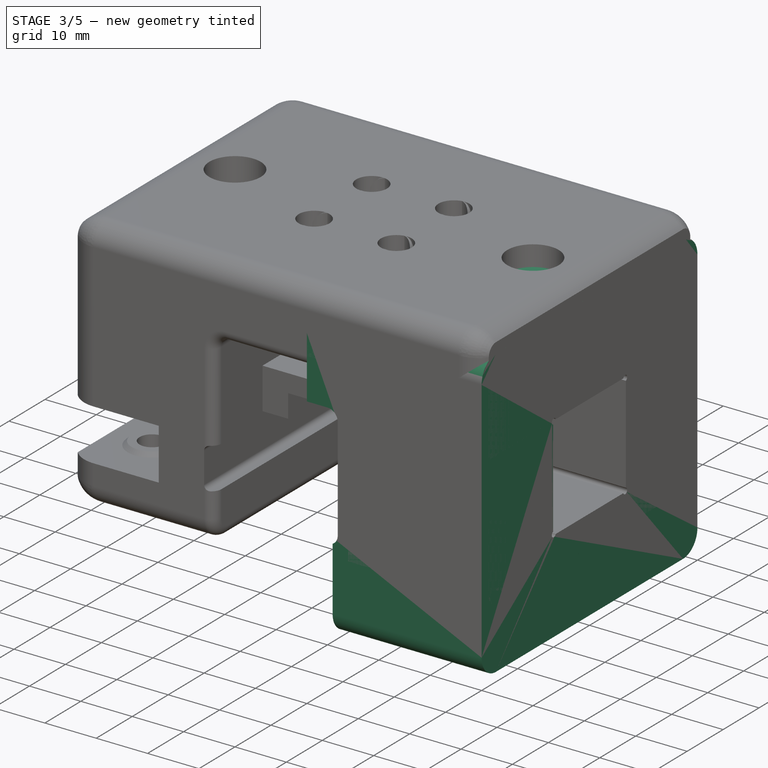
[diagram: stage 3 of 5 — iso view after this stage's code; geometry added in this stage tinted green]
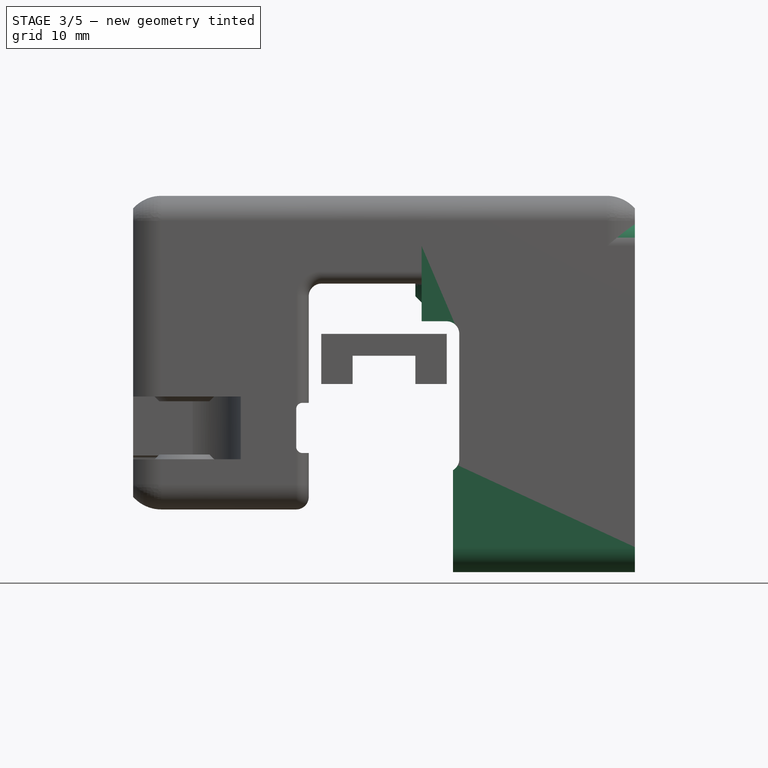
[diagram: stage 3 of 5 — front view after this stage's code; geometry added in this stage tinted green]
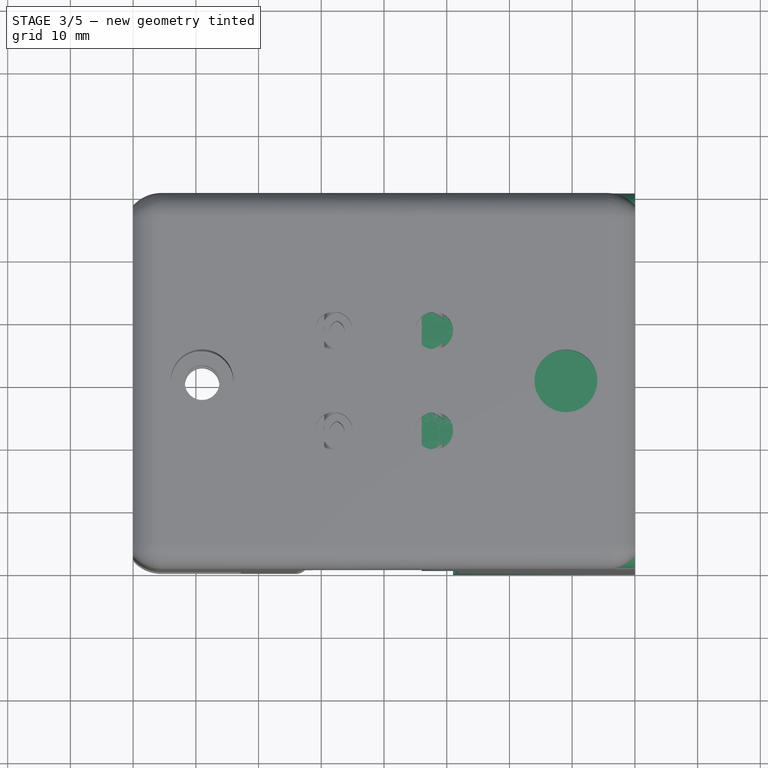
[diagram: stage 3 of 5 — top view after this stage's code; geometry added in this stage tinted green]
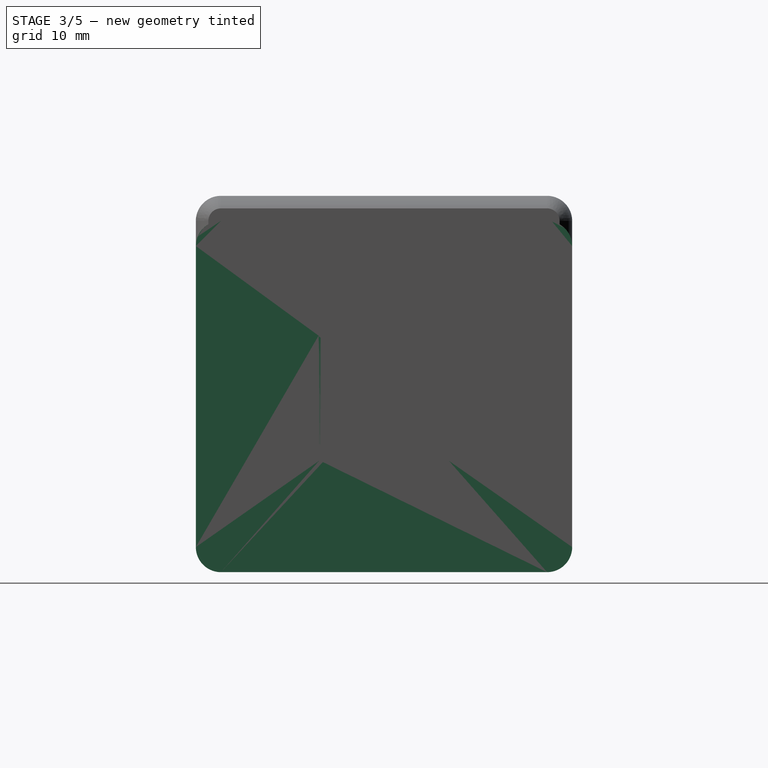
[diagram: stage 3 of 5 — right view after this stage's code; geometry added in this stage tinted green]
FEATURE [Sketcher::SketchObject] Sketch014
  ArcFitTolerance = 0
  AttachmentOffset = pos=(0,0,15) rot=(0,0,1;0rad)
  AttachmentSupport = -> [YZ_Plane251]
  FullyConstrained = true
  MakeInternals = false
  MapMode = 5
  Placement = pos=(15,0,0) rot=(0.57735,0.57735,0.57735;2.0944rad)
  sketch-geometry (5):
    g0: LineSegment StartX=9 StartY=-20 StartZ=0 EndX=9 EndY=-28 EndZ=0
    g1: LineSegment StartX=9 StartY=-28 StartZ=0 EndX=-9 EndY=-28 EndZ=0
    g2: LineSegment StartX=-9 StartY=-28 StartZ=0 EndX=-9 EndY=-20 EndZ=0
    g3: Circle [constr] CenterX=-5e-16 CenterY=-20 CenterZ=0 NormalX=0 NormalY=0 NormalZ=1 AngleXU=0 Radius=9
    g4: ArcOfCircle CenterX=-5e-16 CenterY=-20 CenterZ=0 NormalX=0 NormalY=0 NormalZ=1 AngleXU=0 Radius=9 StartAngle=0 EndAngle=3.14159
  constraints (12):
    c: Coincident(g0,g1)
    c: Coincident(g1,g2)
    c: Vertical(g0)
    c: Vertical(g2)
    c: Symmetric(g0,g1,g-2)
    c: DistanceY(g0) = -28
    c: DistanceX(g1,g1) = 18
    c: Diameter(g3) = 18
    c: DistanceY(g3) = -20
    c: Tangent(g0,g4) = 1.5708
    c: Tangent(g4,g2) = 1.5708
    c: Coincident(g4,g3)
FEATURE [Sketcher::SketchObject] Sketch015
  ArcFitTolerance = 0
  AttachmentOffset = pos=(0,0,14.7) rot=(0,0,1;0rad)
  AttachmentSupport = -> [YZ_Plane251]
  FullyConstrained = true
  MakeInternals = false
  MapMode = 5
  Placement = pos=(14.7,0,0) rot=(0.57735,0.57735,0.57735;2.0944rad)
  sketch-geometry (1):
    g0: Circle CenterX=0 CenterY=-20 CenterZ=0 NormalX=0 NormalY=0 NormalZ=1 AngleXU=0 Radius=3.5
  constraints (3):
    c: PointOnObject(g0,g-2)
    c: Diameter(g0) = 7
    c: DistanceY(g0) = -20
FEATURE [Sketcher::SketchObject] Sketch016
  ArcFitTolerance = 0
  AttachmentOffset = pos=(0,0,19) rot=(0,0,1;0rad)
  AttachmentSupport = -> [XZ_Plane251]
  FullyConstrained = true
  MakeInternals = false
  MapMode = 5
  Placement = pos=(0,-19,4.2e-15) rot=(1,0,0;1.5708rad)
  sketch-geometry (10):
    g0: GeomPoint [constr] X=31.83 Y=0.25 Z=0
    g1: GeomPoint [constr] X=31.83 Y=5 Z=0
    g2: LineSegment StartX=31.83 StartY=0.25 StartZ=0 EndX=31.83 EndY=0.75 EndZ=0
    g3: LineSegment StartX=31.83 StartY=0.75 StartZ=0 EndX=35.83 EndY=0.75 EndZ=0
    g4: LineSegment StartX=35.83 StartY=0.75 StartZ=0 EndX=36.33 EndY=0.25 EndZ=0
    g5: LineSegment StartX=36.33 StartY=0.25 StartZ=0 EndX=31.83 EndY=0.25 EndZ=0
    g6: LineSegment StartX=31.83 StartY=9.75 StartZ=0 EndX=31.83 EndY=9.25 EndZ=0
    g7: LineSegment StartX=31.83 StartY=9.25 StartZ=0 EndX=35.83 EndY=9.25 EndZ=0
    g8: LineSegment StartX=35.83 StartY=9.25 StartZ=0 EndX=36.33 EndY=9.75 EndZ=0
    g9: LineSegment StartX=36.33 StartY=9.75 StartZ=0 EndX=31.83 EndY=9.75 EndZ=0
  constraints (26):
    c: Vertical(g1,g0)
    c: Coincident(g2,g0)
    c: Vertical(g2)
    c: Coincident(g2,g3)
    c: Horizontal(g3)
    c: Coincident(g3,g4)
    c: Coincident(g4,g5)
    c: Coincident(g5,g2)
    c: Horizontal(g5)
    c: Coincident(g6,g7)
    c: Horizontal(g7)
    c: Coincident(g7,g8)
    c: Coincident(g8,g9)
    c: Coincident(g9,g6)
    c: Vertical(g6)
    c: Horizontal(g9)
    c: Symmetric(g2,g6,g1)
    c: Equal(g2,g6)
    c: DistanceY(g-1,g1) = 5
    c: DistanceX(g1) = 31.83
    c: DistanceY(g2,g6) = 9.5
    c: DistanceY(g2,g2) = 0.5
    c: DistanceX(g3,g3) = 4
    c: Angle(g4) = -0.785398
    c: Perpendicular(g4,g8)
    c: Equal(g9,g5)
FEATURE [Sketcher::SketchObject] Sketch227
  ArcFitTolerance = 0
  AttachmentOffset = pos=(0,0,6) rot=(0,0,1;0rad)
  AttachmentSupport = -> [YZ_Plane251]
  FullyConstrained = true
  MakeInternals = false
  MapMode = 5
  Placement = pos=(6,0,0) rot=(0.57735,0.57735,0.57735;2.0944rad)
  sketch-geometry (12):
    g0: LineSegment StartX=-26 StartY=28 StartZ=0 EndX=26 EndY=28 EndZ=0
    g1: LineSegment StartX=30 StartY=24 StartZ=0 EndX=30 EndY=-24 EndZ=0
    g2: LineSegment StartX=26 StartY=-28 StartZ=0 EndX=-26 EndY=-28 EndZ=0
    g3: LineSegment StartX=-30 StartY=-24 StartZ=0 EndX=-30 EndY=24 EndZ=0
    g4: ArcOfCircle CenterX=-26 CenterY=24 CenterZ=0 NormalX=0 NormalY=0 NormalZ=1 AngleXU=0 Radius=4 StartAngle=1.5708 EndAngle=3.14159
    g5: GeomPoint [constr] X=-30 Y=28 Z=0
    g6: ArcOfCircle CenterX=26 CenterY=24 CenterZ=0 NormalX=0 NormalY=0 NormalZ=1 AngleXU=0 Radius=4 StartAngle=2.62e-14 EndAngle=1.5708
    g7: GeomPoint [constr] X=30 Y=28 Z=0
    g8: ArcOfCircle CenterX=26 CenterY=-24 CenterZ=0 NormalX=0 NormalY=0 NormalZ=1 AngleXU=0 Radius=4 StartAngle=4.71239 EndAngle=6.28319
    g9: GeomPoint [constr] X=30 Y=-28 Z=0
    g10: ArcOfCircle CenterX=-26 CenterY=-24 CenterZ=0 NormalX=0 NormalY=0 NormalZ=1 AngleXU=0 Radius=4 StartAngle=3.14159 EndAngle=4.71239
    g11: GeomPoint [constr] X=-30 Y=-28 Z=0
  constraints (27):
    c: Horizontal(g0)
    c: Horizontal(g2)
    c: Vertical(g1)
    c: Vertical(g3)
    c: Symmetric(g9,g5,g-1)
    c: DistanceY(g9,g7) = 56
    c: DistanceX(g11,g9) = 60
    c: PointOnObject(g5,g0)
    c: PointOnObject(g5,g3)
    c: Tangent(g0,g4) = 1.5708
    c: Tangent(g3,g4) = 1.5708
    c: PointOnObject(g7,g0)
    c: PointOnObject(g7,g1)
    c: Tangent(g0,g6) = 1.5708
    c: Tangent(g1,g6) = 1.5708
    c: PointOnObject(g9,g1)
    c: PointOnObject(g9,g2)
    c: Tangent(g1,g8) = 1.5708
    c: Tangent(g2,g8) = 1.5708
    c: PointOnObject(g11,g2)
    c: PointOnObject(g11,g3)
    c: Tangent(g2,g10) = 1.5708
    c: Tangent(g3,g10) = 1.5708
    c: Equal(g10,g4)
    c: Equal(g4,g6)
    c: Equal(g6,g8)
    c: Radius(g8) = 4
FEATURE [PartDesign::Pad] Pad057
  Direction = (1,0,0)
  Length = 34
  Length2 = 10
  Placement = pos=(0,0,0) rot=(1,1,1;2.0944rad)
  Profile = -> Sketch227
  ReferenceAxis = -> Sketch227 [N_Axis]
  Suppressed = false
  Type = 0
FEATURE [Sketcher::SketchObject] Sketch228
  ArcFitTolerance = 0
  AttachmentOffset = pos=(0,0,18) rot=(0,0,1;0rad)
  AttachmentSupport = -> [YZ_Plane251]
  FullyConstrained = true
  MakeInternals = false
  MapMode = 5
  Placement = pos=(18,0,0) rot=(0.57735,0.57735,0.57735;2.0944rad)
  sketch-geometry (20):
    g0: LineSegment StartX=-9.4043 StartY=10.1 StartZ=0 EndX=9.4043 EndY=10.1 EndZ=0
    g1: LineSegment StartX=10.1 StartY=9.4043 StartZ=0 EndX=10.1 EndY=-9.4043 EndZ=0
    g2: LineSegment StartX=9.4043 StartY=-10.1 StartZ=0 EndX=-9.4043 EndY=-10.1 EndZ=0
    g3: LineSegment StartX=-10.1 StartY=-9.4043 StartZ=0 EndX=-10.1 EndY=9.4043 EndZ=0
    g4: ArcOfCircle CenterX=-9.92607 CenterY=9.92607 CenterZ=0 NormalX=0 NormalY=0 NormalZ=1 AngleXU=0 Radius=0.55 StartAngle=0.321751 EndAngle=4.39064
    g5: ArcOfCircle CenterX=9.92607 CenterY=9.92607 CenterZ=0 NormalX=0 NormalY=0 NormalZ=1 AngleXU=0 Radius=0.55 StartAngle=5.03414 EndAngle=9.10303
    g6: ArcOfCircle CenterX=9.92607 CenterY=-9.92607 CenterZ=0 NormalX=0 NormalY=0 NormalZ=1 AngleXU=0 Radius=0.55 StartAngle=3.46334 EndAngle=7.53223
    g7: ArcOfCircle CenterX=-9.92607 CenterY=-9.92607 CenterZ=0 NormalX=0 NormalY=0 NormalZ=1 AngleXU=0 Radius=0.55 StartAngle=1.89255 EndAngle=5.96143
    g8: LineSegment [constr] StartX=-10.1 StartY=9.4043 StartZ=0 EndX=-9.4043 EndY=10.1 EndZ=0
    g9: LineSegment [constr] StartX=9.4043 StartY=10.1 StartZ=0 EndX=10.1 EndY=9.4043 EndZ=0
    g10: LineSegment [constr] StartX=9.4043 StartY=-10.1 StartZ=0 EndX=10.1 EndY=-9.4043 EndZ=0
    g11: LineSegment [constr] StartX=-10.1 StartY=-9.4043 StartZ=0 EndX=-9.4043 EndY=-10.1 EndZ=0
    g12: GeomPoint [constr] X=-10.1 Y=10.1 Z=0
    g13: GeomPoint [constr] X=-9.75215 Y=9.75215 Z=0
    g14: GeomPoint [constr] X=9.75215 Y=9.75215 Z=0
    g15: GeomPoint [constr] X=10.1 Y=10.1 Z=0
    g16: GeomPoint [constr] X=-10.1 Y=-10.1 Z=0
    g17: GeomPoint [constr] X=-9.75215 Y=-9.75215 Z=0
    g18: GeomPoint [constr] X=10.1 Y=-10.1 Z=0
    g19: GeomPoint [constr] X=9.75215 Y=-9.75215 Z=0
  constraints (43):
    c: Horizontal(g0)
    c: Horizontal(g2)
    c: Vertical(g1)
    c: Vertical(g3)
    c: Coincident(g0,g4)
    c: Coincident(g3,g4)
    c: Coincident(g1,g5)
    c: Coincident(g0,g5)
    c: Coincident(g2,g6)
    c: Coincident(g1,g6)
    c: Coincident(g2,g7)
    c: Coincident(g3,g7)
    c: Coincident(g8,g3)
    c: Coincident(g8,g0)
    c: Coincident(g9,g0)
    c: Coincident(g9,g1)
    c: Coincident(g10,g2)
    c: Coincident(g10,g1)
    c: Coincident(g11,g3)
    c: Coincident(g11,g2)
    c: Equal(g6,g7)
    c: Equal(g7,g4)
    c: Equal(g4,g5)
    c: Parallel(g8,g10)
    c: Parallel(g11,g9)
    c: Perpendicular(g10,g9)
    c: Angle(g10) = 0.785398
    c: Radius(g4) = 0.55
    c: PointOnObject(g12,g0)
    c: Symmetric(g3,g0,g13)
    c: Symmetric(g13,g12,g4)
    c: Symmetric(g1,g0,g14)
    c: PointOnObject(g15,g1)
    c: Symmetric(g14,g15,g5)
    c: Symmetric(g3,g2,g17)
    c: PointOnObject(g16,g2)
    c: Symmetric(g16,g17,g7)
    c: PointOnObject(g18,g1)
    c: Symmetric(g18,g19,g6)
    c: Symmetric(g2,g1,g19)
    c: Symmetric(g18,g12,g-1)
    c: DistanceX(g16,g18) = 20.2
    c: DistanceY(g16,g12) = 20.2
FEATURE [PartDesign::Pocket] Pocket138
  BaseFeature = -> Pad057
  Direction = (-1,0,0)
  Length = 20
  Length2 = 5
  Placement = pos=(0,0,0) rot=(1,1,1;2.0944rad)
  Profile = -> Sketch228
  ReferenceAxis = -> Sketch228 [N_Axis]
  Reversed = true
  Suppressed = false
  Type = 1
FEATURE [Sketcher::SketchObject] Sketch229
  ArcFitTolerance = 0
  AttachmentSupport = -> [XZ_Plane251]
  FullyConstrained = true
  MakeInternals = false
  MapMode = 5
  Placement = pos=(0,0,0) rot=(1,0,0;1.5708rad)
  sketch-geometry (8):
    g0: LineSegment StartX=-10 StartY=12 StartZ=0 EndX=10 EndY=12 EndZ=0
    g1: LineSegment StartX=12 StartY=10 StartZ=0 EndX=12 EndY=-10 EndZ=0
    g2: LineSegment StartX=-12 StartY=-30 StartZ=0 EndX=-12 EndY=10 EndZ=0
    g3: ArcOfCircle CenterX=10 CenterY=10 CenterZ=0 NormalX=0 NormalY=0 NormalZ=1 AngleXU=0 Radius=2 StartAngle=1.8e-15 EndAngle=1.5708
    g4: ArcOfCircle CenterX=10 CenterY=-10 CenterZ=0 NormalX=0 NormalY=0 NormalZ=1 AngleXU=0 Radius=2 StartAngle=5.23599 EndAngle=6.28319
    g5: ArcOfCircle CenterX=-10 CenterY=10 CenterZ=0 NormalX=0 NormalY=0 NormalZ=1 AngleXU=0 Radius=2 StartAngle=1.5708 EndAngle=3.14159
    g6: LineSegment StartX=-12 StartY=-30 StartZ=0 EndX=11 EndY=-30 EndZ=0
    g7: LineSegment StartX=11 StartY=-30 StartZ=0 EndX=11 EndY=-11.7321 EndZ=0
  constraints (21):
    c: Tangent(g0,g3) = 1.5708
    c: Tangent(g1,g3) = 1.5708
    c: Tangent(g1,g4) = 1.5708
    c: Tangent(g0,g5) = 1.5708
    c: Tangent(g2,g5) = 1.5708
    c: Equal(g5,g3)
    c: Equal(g3,g4)
    c: Radius(g3) = 2
    c: DistanceX(g5,g3) = 20
    c: Symmetric(g4,g5,g-1)
    c: Horizontal(g5,g3)
    c: Vertical(g4,g3)
    c: Vertical(g2)
    c: DistanceY(g2) = -30
    c: Coincident(g6,g2)
    c: Horizontal(g6)
    c: Coincident(g7,g6)
    c: Coincident(g7,g4)
    c: Vertical(g7)
    c: DistanceX(g6) = 11
    c: Equal(g1,g0)
FEATURE [PartDesign::Pocket] Pocket139
  BaseFeature = -> Pocket138
  Direction = (0,1,-2e-16)
  Length = 5
  Length2 = 5
  Midplane = true
  Placement = pos=(0,0,0) rot=(1,1,1;2.0944rad)
  Profile = -> Sketch229
  ReferenceAxis = -> Sketch229 [N_Axis]
  Suppressed = false
  Type = 1
FEATURE [Sketcher::SketchObject] Sketch230
  ArcFitTolerance = 0
  AttachmentOffset = pos=(0,0,5) rot=(0,0,1;0rad)
  AttachmentSupport = -> [XY_Plane251]
  FullyConstrained = true
  MakeInternals = false
  MapMode = 5
  Placement = pos=(0,0,5) rot=(0,0,1;0rad)
  sketch-geometry (5):
    g0: ArcOfCircle CenterX=31.83 CenterY=-19 CenterZ=0 NormalX=0 NormalY=0 NormalZ=1 AngleXU=0 Radius=9 StartAngle=1.5708 EndAngle=3.14159
    g1: LineSegment StartX=22.83 StartY=-19 StartZ=0 EndX=22.83 EndY=-30 EndZ=0
    g2: LineSegment StartX=22.83 StartY=-30 StartZ=0 EndX=40.83 EndY=-30 EndZ=0
    g3: LineSegment StartX=40.83 StartY=-30 StartZ=0 EndX=40.83 EndY=-10 EndZ=0
    g4: LineSegment StartX=40.83 StartY=-10 StartZ=0 EndX=31.83 EndY=-10 EndZ=0
  constraints (15):
    c: Diameter(g0) = 18
    c: Vertical(g1)
    c: Coincident(g2,g1)
    c: Horizontal(g2)
    c: Coincident(g3,g2)
    c: Vertical(g3)
    c: Coincident(g4,g3)
    c: Horizontal(g4)
    c: Tangent(g0,g1) = -1.5708
    c: Tangent(g0,g4) = -1.5708
    c: Tangent(g3,g0)
    c: DistanceY(g1) = -30
    c: DistanceX(g0) = 31.83
    c: DistanceY(g0) = -19
    c: DistanceX(g0) = 31.83
FEATURE [Sketcher::SketchObject] Sketch231
  ArcFitTolerance = 0
  AttachmentOffset = pos=(0,0,-5) rot=(0,0,1;0rad)
  AttachmentSupport = -> [XY_Plane251]
  FullyConstrained = true
  MakeInternals = false
  MapMode = 5
  Placement = pos=(0,0,-5) rot=(0,0,1;0rad)
  sketch-geometry (10):
    g0: ArcOfCircle CenterX=19 CenterY=19 CenterZ=0 NormalX=0 NormalY=0 NormalZ=1 AngleXU=0 Radius=9 StartAngle=3.14159 EndAngle=5.25009
    g1: LineSegment StartX=10 StartY=19 StartZ=0 EndX=10 EndY=30 EndZ=0
    g2: LineSegment StartX=10 StartY=30 StartZ=0 EndX=28 EndY=30 EndZ=0
    g3: LineSegment StartX=28 StartY=30 StartZ=0 EndX=28 EndY=19 EndZ=0
    g4: LineSegment StartX=23.6095 StartY=11.27 StartZ=0 EndX=40 EndY=11.27 EndZ=0
    g5: LineSegment StartX=40 StartY=11.27 StartZ=0 EndX=40 EndY=14.65 EndZ=0
    g6: LineSegment StartX=40 StartY=14.65 StartZ=0 EndX=26.8789 EndY=14.65 EndZ=0
    g7: ArcOfCircle CenterX=19 CenterY=19 CenterZ=0 NormalX=0 NormalY=0 NormalZ=1 AngleXU=0 Radius=9 StartAngle=5.77873 EndAngle=6.28319
    g8: GeomPoint [constr] X=19 Y=12.9 Z=0
    g9: Circle [constr] CenterX=19 CenterY=19 CenterZ=0 NormalX=0 NormalY=0 NormalZ=1 AngleXU=0 Radius=6.1
  constraints (27):
    c: Diameter(g0) = 18
    c: Vertical(g1)
    c: Coincident(g2,g1)
    c: Horizontal(g2)
    c: Coincident(g3,g2)
    c: Vertical(g3)
    c: DistanceY(g2) = 30
    c: Tangent(g0,g1) = 1.5708
    c: Horizontal(g4)
    c: Coincident(g5,g4)
    c: Vertical(g5)
    c: Coincident(g6,g5)
    c: Horizontal(g6)
    c: Equal(g0,g7)
    c: Coincident(g0,g4)
    c: Coincident(g7,g6)
    c: Coincident(g0,g7)
    c: Tangent(g7,g3) = 1.5708
    c: DistanceX(g5) = 40
    c: Vertical(g8,g0)
    c: DistanceY(g0,g8) = 1.63
    c: DistanceY(g8,g6) = 1.75
    c: Coincident(g9,g0)
    c: Diameter(g9) = 12.2
    c: PointOnObject(g8,g9)
    c: DistanceX(g0) = 19
    c: DistanceY(g0) = 19
FEATURE [Sketcher::SketchObject] Sketch232
  ArcFitTolerance = 0
  AttachmentOffset = pos=(0,0,29.7) rot=(0,0,1;0rad)
  AttachmentSupport = -> [YZ_Plane251]
  FullyConstrained = true
  MakeInternals = false
  MapMode = 5
  Placement = pos=(29.7,0,0) rot=(0.57735,0.57735,0.57735;2.0944rad)
  sketch-geometry (2):
    g0: Circle CenterX=18 CenterY=20 CenterZ=0 NormalX=0 NormalY=0 NormalZ=1 AngleXU=0 Radius=2.75
    g1: Circle CenterX=-18 CenterY=20 CenterZ=0 NormalX=0 NormalY=0 NormalZ=1 AngleXU=0 Radius=2.75
  constraints (5):
    c: Symmetric(g1,g0,g-2)
    c: Equal(g1,g0)
    c: Diameter(g1) = 5.5
    c: DistanceX(g1,g0) = 36
    c: DistanceY(g0) = 20
FEATURE [Sketcher::SketchObject] Sketch233
  ArcFitTolerance = 0
  AttachmentOffset = pos=(0,0,30) rot=(0,0,1;0rad)
  AttachmentSupport = -> [YZ_Plane251]
  FullyConstrained = true
  MakeInternals = false
  MapMode = 5
  Placement = pos=(30,0,0) rot=(0.57735,0.57735,0.57735;2.0944rad)
  sketch-geometry (14):
    g0: LineSegment StartX=-15.5751 StartY=15.8 StartZ=0 EndX=-13.1503 EndY=20 EndZ=0
    g1: LineSegment StartX=-13.1503 StartY=20 StartZ=0 EndX=-15.5751 EndY=24.2 EndZ=0
    g2: LineSegment StartX=-15.5751 StartY=24.2 StartZ=0 EndX=-20.4249 EndY=24.2 EndZ=0
    g3: LineSegment StartX=-20.4249 StartY=24.2 StartZ=0 EndX=-22.8497 EndY=20 EndZ=0
    g4: LineSegment StartX=-22.8497 StartY=20 StartZ=0 EndX=-20.4249 EndY=15.8 EndZ=0
    g5: LineSegment StartX=-20.4249 StartY=15.8 StartZ=0 EndX=-15.5751 EndY=15.8 EndZ=0
    g6: Circle [constr] CenterX=-18 CenterY=20 CenterZ=0 NormalX=0 NormalY=0 NormalZ=1 AngleXU=0 Radius=4.84974
    g7: LineSegment StartX=20.4249 StartY=15.8 StartZ=0 EndX=22.8497 EndY=20 EndZ=0
    g8: LineSegment StartX=22.8497 StartY=20 StartZ=0 EndX=20.4249 EndY=24.2 EndZ=0
    g9: LineSegment StartX=20.4249 StartY=24.2 StartZ=0 EndX=15.5751 EndY=24.2 EndZ=0
    g10: LineSegment StartX=15.5751 StartY=24.2 StartZ=0 EndX=13.1503 EndY=20 EndZ=0
    g11: LineSegment StartX=13.1503 StartY=20 StartZ=0 EndX=15.5751 EndY=15.8 EndZ=0
    g12: LineSegment StartX=15.5751 StartY=15.8 StartZ=0 EndX=20.4249 EndY=15.8 EndZ=0
    g13: Circle [constr] CenterX=18 CenterY=20 CenterZ=0 NormalX=0 NormalY=0 NormalZ=1 AngleXU=0 Radius=4.84974
  constraints (33):
    c: Coincident(g0,g1)
    c: Coincident(g1,g2)
    c: Coincident(g2,g3)
    c: Coincident(g3,g4)
    c: Coincident(g4,g5)
    c: Coincident(g5,g0)
    c: Equal(g0, g1-g5) x5
    c: PointOnObject(g0,g6)
    c: PointOnObject(g1,g6)
    c: PointOnObject(g2,g6)
    c: PointOnObject(g3,g6)
    c: PointOnObject(g4,g6)
    c: PointOnObject(g5,g6)
    c: Coincident(g7,g8)
    c: Coincident(g8,g9)
    c: Coincident(g9,g10)
    c: Coincident(g10,g11)
    c: Coincident(g11,g12)
    c: Coincident(g12,g7)
    c: Equal(g7, g8-g12) x5
    c: PointOnObject(g7,g13)
    c: PointOnObject(g8,g13)
    c: PointOnObject(g9,g13)
    c: PointOnObject(g10,g13)
    c: PointOnObject(g11,g13)
    c: PointOnObject(g12,g13)
    c: Horizontal(g9)
    c: Horizontal(g2)
    c: Symmetric(g6,g13,g-2)
    c: Equal(g13,g6)
    c: DistanceY(g6) = 20
    c: DistanceX(g6,g13) = 36
    c: DistanceY(g7,g8) = 8.4
FEATURE [Sketcher::SketchObject] Sketch234
  ArcFitTolerance = 0
  AttachmentOffset = pos=(0,0,20) rot=(0,0,1;0rad)
  AttachmentSupport = -> [XY_Plane251]
  FullyConstrained = true
  MakeInternals = false
  MapMode = 5
  Placement = pos=(0,0,20) rot=(0,0,1;0rad)
  sketch-geometry (5):
    g0: GeomPoint [constr] X=6 Y=18 Z=0
    g1: LineSegment StartX=6 StartY=18 StartZ=0 EndX=6 EndY=23 EndZ=0
    g2: LineSegment StartX=6 StartY=23 StartZ=0 EndX=5 EndY=22 EndZ=0
    g3: LineSegment StartX=5 StartY=22 StartZ=0 EndX=5 EndY=18 EndZ=0
    g4: LineSegment StartX=5 StartY=18 StartZ=0 EndX=6 EndY=18 EndZ=0
  constraints (13):
    c: DistanceX(g0) = 6
    c: DistanceY(g0) = 18
    c: Coincident(g1,g0)
    c: Vertical(g1)
    c: Coincident(g1,g2)
    c: Coincident(g2,g3)
    c: Vertical(g3)
    c: Coincident(g3,g4)
    c: Coincident(g4,g1)
    c: Horizontal(g4)
    c: Angle(g2) = -2.35619
    c: DistanceY(g3,g3) = 4
    c: DistanceX(g3) = 5
FEATURE [PartDesign::Revolution] Revolution016
  Angle = 360
  Angle2 = 60
  Axis = (1,0,0)
  Base = (5,18,20)
  BaseFeature = -> Pocket139
  Placement = pos=(0,0,0) rot=(1,1,1;2.0944rad)
  Profile = -> Sketch234
  ReferenceAxis = -> Sketch234 [Edge4]
  Reversed = true
  Suppressed = false
  Type = 0
FEATURE [PartDesign::Mirrored] Mirrored030
  BaseFeature = -> Revolution016
  MirrorPlane = -> XZ_Plane251
  Originals = -> [Revolution016]
  Placement = pos=(0,0,0) rot=(1,1,1;2.0944rad)
  Suppressed = false
  TransformMode = 0
FEATURE [PartDesign::Pocket] Pocket142
  BaseFeature = -> Mirrored030
  Direction = (-1,0,0)
  Length = 5
  Length2 = 5
  Placement = pos=(0,0,0) rot=(1,1,1;2.0944rad)
  Profile = -> Sketch232
  ReferenceAxis = -> Sketch232 [N_Axis]
  Suppressed = false
  Type = 1
FEATURE [PartDesign::Pocket] Pocket184
  BaseFeature = -> Pocket183
  Direction = (0,0,-1)
  Length = 10
  Length2 = 5
  Midplane = true
  Profile = -> Sketch475
  ReferenceAxis = -> Sketch475 [N_Axis]
  Suppressed = false
  Type = 0
FEATURE [PartDesign::Revolution] Revolution
  Angle = 360
  Angle2 = 60
  Axis = (0,2e-16,1)
  Base = (31.83,-19,4.3e-15)
  BaseFeature = -> Pocket184
  Profile = -> Sketch476
  ReferenceAxis = -> Sketch476 [Edge1]
  Reversed = true
  Suppressed = false
  Type = 0
FEATURE [PartDesign::Revolution] Revolution021
  Angle = 360
  Angle2 = 60
  Axis = (0,-2e-16,-1)
  Base = (19,19,-4.4e-15)
  BaseFeature = -> Revolution
  Profile = -> Sketch477
  ReferenceAxis = -> Sketch477 [Edge1]
  Reversed = true
  Suppressed = false
  Type = 0
FEATURE [PartDesign::Groove] Groove012
  Angle = 360
  Angle2 = 60
  Axis = (0,-2e-16,-1)
  Base = (31.83,-19,12.5)
  BaseFeature = -> Revolution021
  Profile = -> Sketch478
  ReferenceAxis = -> Sketch478 [Edge1]
  Suppressed = false
  Type = 0
FEATURE [PartDesign::Groove] Groove013
  Angle = 360
  Angle2 = 60
  Axis = (0,-2e-16,-1)
  Base = (19,19,7.5)
  BaseFeature = -> Groove012
  Profile = -> Sketch479
  ReferenceAxis = -> Sketch479 [Edge1]
  Suppressed = false
  Type = 0
FEATURE [PartDesign::Pocket] Pocket185
  BaseFeature = -> Groove013
  Direction = (0,1,-2e-16)
  Length = 5
  Length2 = 5
  Midplane = true
  Profile = -> Sketch480
  ReferenceAxis = -> Sketch480 [N_Axis]
  Suppressed = false
  Type = 1
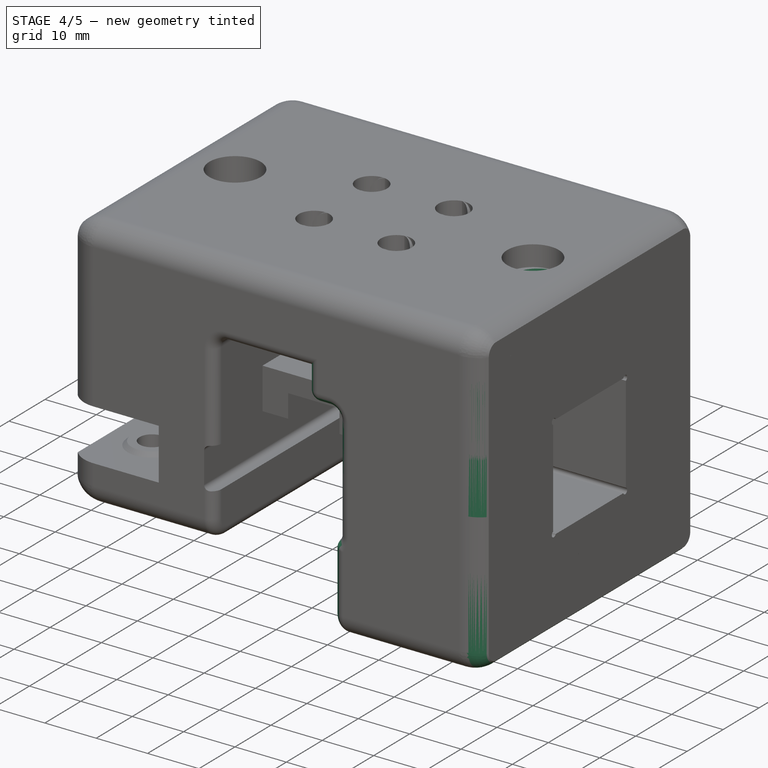
[diagram: stage 4 of 5 — iso view after this stage's code; geometry added in this stage tinted green]
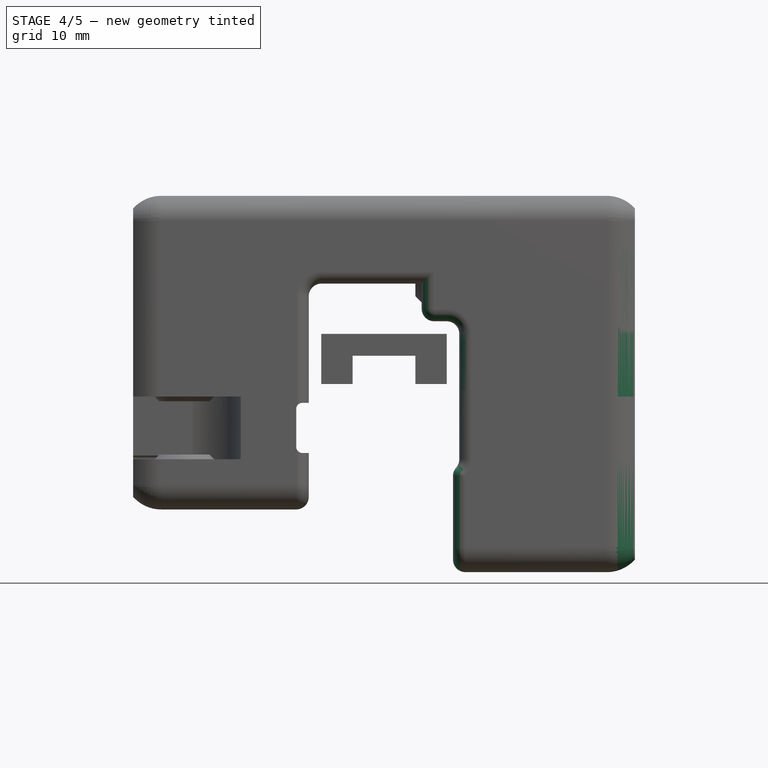
[diagram: stage 4 of 5 — front view after this stage's code; geometry added in this stage tinted green]
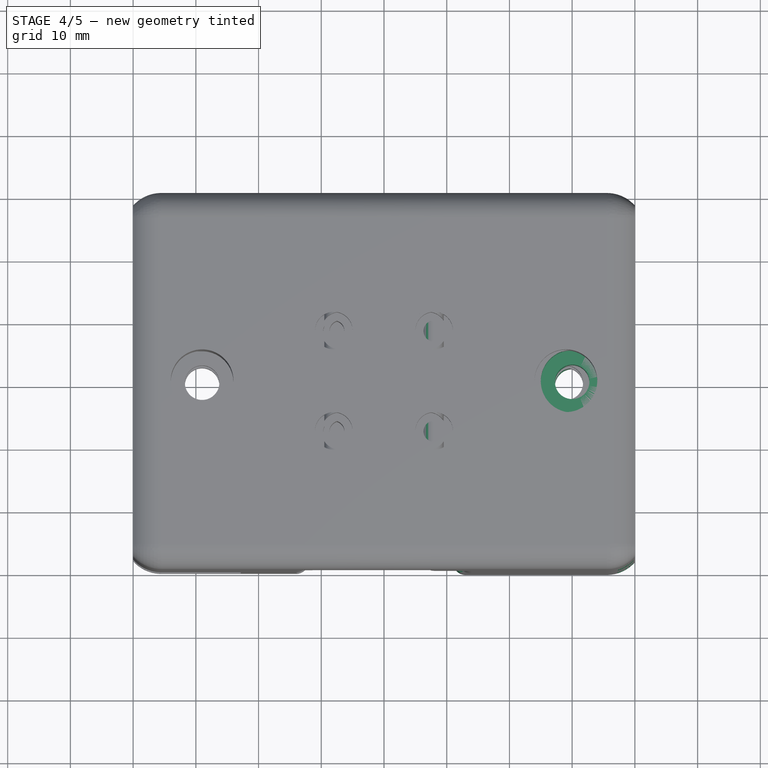
[diagram: stage 4 of 5 — top view after this stage's code; geometry added in this stage tinted green]
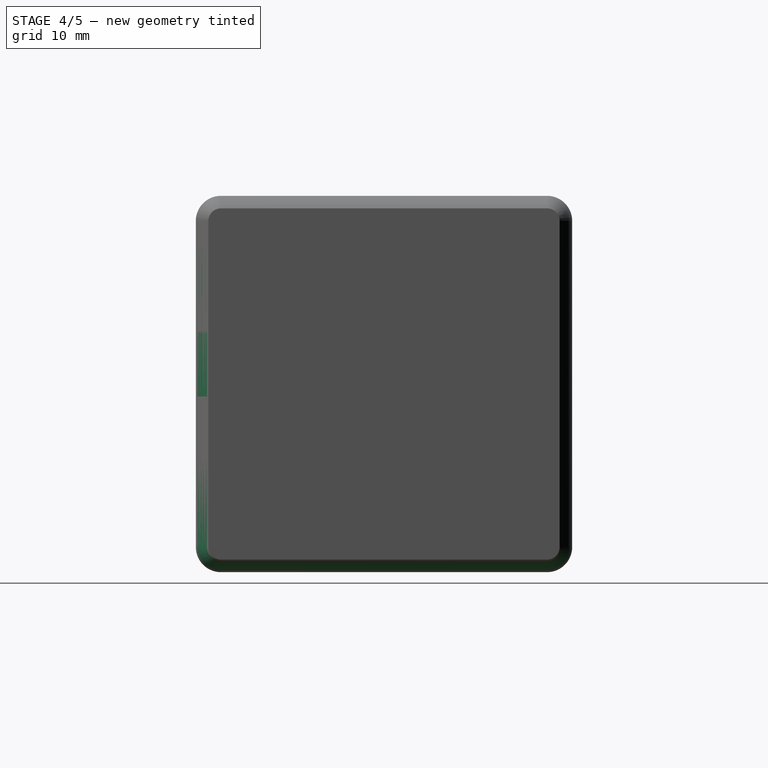
[diagram: stage 4 of 5 — right view after this stage's code; geometry added in this stage tinted green]
FEATURE [PartDesign::Pocket] Pocket143
  BaseFeature = -> Pocket142
  Direction = (-1,0,0)
  Length = 5
  Length2 = 5
  Placement = pos=(0,0,0) rot=(1,1,1;2.0944rad)
  Profile = -> Sketch233
  ReferenceAxis = -> Sketch233 [N_Axis]
  Reversed = true
  Suppressed = false
  Type = 1
FEATURE [Sketcher::SketchObject] Sketch235
  ArcFitTolerance = 0
  AttachmentSupport = -> [XY_Plane251]
  FullyConstrained = true
  MakeInternals = false
  MapMode = 5
  sketch-geometry (1):
    g0: Circle CenterX=30 CenterY=0 CenterZ=0 NormalX=0 NormalY=0 NormalZ=1 AngleXU=0 Radius=2.75
  constraints (3):
    c: PointOnObject(g0,g-1)
    c: DistanceX(g0) = 30
    c: Diameter(g0) = 5.5
FEATURE [PartDesign::Pocket] Pocket144
  BaseFeature = -> Pocket143
  Direction = (0,0,-1)
  Length = 5
  Length2 = 5
  Midplane = true
  Placement = pos=(0,0,0) rot=(1,1,1;2.0944rad)
  Profile = -> Sketch235
  ReferenceAxis = -> Sketch235 [N_Axis]
  Suppressed = false
  Type = 1
FEATURE [Sketcher::SketchObject] Sketch236
  ArcFitTolerance = 0
  AttachmentOffset = pos=(0,0,22) rot=(0,0,1;0rad)
  AttachmentSupport = -> [XY_Plane251]
  FullyConstrained = true
  MakeInternals = false
  MapMode = 5
  Placement = pos=(0,0,22) rot=(0,0,1;0rad)
  sketch-geometry (1):
    g0: Circle CenterX=30 CenterY=0 CenterZ=0 NormalX=0 NormalY=0 NormalZ=1 AngleXU=0 Radius=5
  constraints (3):
    c: PointOnObject(g0,g-1)
    c: DistanceX(g0) = 30
    c: Diameter(g0) = 10
FEATURE [PartDesign::Pocket] Pocket145
  BaseFeature = -> Pocket144
  Direction = (0,0,-1)
  Length = 5
  Length2 = 5
  Placement = pos=(0,0,0) rot=(1,1,1;2.0944rad)
  Profile = -> Sketch236
  ReferenceAxis = -> Sketch236 [N_Axis]
  Reversed = true
  Suppressed = false
  Type = 1
FEATURE [PartDesign::Mirrored] Mirrored031
  BaseFeature = -> Pocket145
  MirrorPlane = -> XY_Plane251
  Originals = -> [Pocket145]
  Placement = pos=(0,0,0) rot=(1,1,1;2.0944rad)
  Suppressed = false
  TransformMode = 0
FEATURE [PartDesign::Pocket] Pocket146
  BaseFeature = -> Mirrored031
  Direction = (-1,0,0)
  Length = 6.5
  Length2 = 5
  Placement = pos=(0,0,0) rot=(1,1,1;2.0944rad)
  Profile = -> Sketch014
  ReferenceAxis = -> Sketch014 [N_Axis]
  Reversed = true
  Suppressed = false
  Type = 0
FEATURE [PartDesign::Pocket] Pocket009
  BaseFeature = -> Pocket146
  Direction = (-1,0,0)
  Length = 5
  Length2 = 5
  Placement = pos=(0,0,0) rot=(1,1,1;2.0944rad)
  Profile = -> Sketch015
  ReferenceAxis = -> Sketch015 [N_Axis]
  Suppressed = false
  Type = 1
FEATURE [PartDesign::Chamfer] Chamfer001
  Angle = 45
  Base = -> Pocket009 [Edge8]
  BaseFeature = -> Pocket009
  ChamferType = 0
  FlipDirection = false
  Placement = pos=(0,0,0) rot=(1,1,1;2.0944rad)
  Size = 2
  Size2 = 1
  SupportTransform = false
  Suppressed = false
  UseAllEdges = false
FEATURE [PartDesign::Fillet] Fillet
  Base = -> Chamfer001 [Edge2]
  BaseFeature = -> Chamfer001
  Placement = pos=(0,0,0) rot=(1,1,1;2.0944rad)
  Radius = 6
  SupportTransform = false
  Suppressed = false
  UseAllEdges = false
FEATURE [PartDesign::Fillet] Fillet001
  Base = -> Fillet [Edge9,Edge36,Edge16,Edge3,Edge6,Edge27]
  BaseFeature = -> Fillet
  Placement = pos=(0,0,0) rot=(1,1,1;2.0944rad)
  Radius = 2
  SupportTransform = false
  Suppressed = false
  UseAllEdges = false
FEATURE [PartDesign::FeatureBase] Clone069
  BaseFeature = -> Body118
  Suppressed = false
FEATURE [Sketcher::SketchObject] Sketch248
  ArcFitTolerance = 0
  AttachmentOffset = pos=(0,0,19) rot=(0,0,1;0rad)
  AttachmentSupport = -> [XZ_Plane254]
  FullyConstrained = true
  MakeInternals = false
  MapMode = 5
  Placement = pos=(0,-19,4.2e-15) rot=(1,0,0;1.5708rad)
  sketch-geometry (10):
    g0: GeomPoint [constr] X=31.08 Y=-10 Z=0
    g1: GeomPoint [constr] X=31.08 Y=-5 Z=0
    g2: LineSegment StartX=31.08 StartY=-10 StartZ=0 EndX=31.08 EndY=-9.25 EndZ=0
    g3: LineSegment StartX=31.08 StartY=-9.25 StartZ=0 EndX=35.08 EndY=-9.25 EndZ=0
    g4: LineSegment StartX=35.08 StartY=-9.25 StartZ=0 EndX=35.83 EndY=-10 EndZ=0
    g5: LineSegment StartX=35.83 StartY=-10 StartZ=0 EndX=31.08 EndY=-10 EndZ=0
    g6: LineSegment StartX=31.08 StartY=-0.75 StartZ=0 EndX=31.08 EndY=2e-16 EndZ=0
    g7: LineSegment StartX=31.08 StartY=2e-16 StartZ=0 EndX=35.83 EndY=2e-16 EndZ=0
    g8: LineSegment StartX=35.83 StartY=2e-16 StartZ=0 EndX=35.08 EndY=-0.75 EndZ=0
    g9: LineSegment StartX=35.08 StartY=-0.75 StartZ=0 EndX=31.08 EndY=-0.75 EndZ=0
  constraints (26):
    c: Vertical(g1,g0)
    c: Coincident(g2,g0)
    c: Vertical(g2)
    c: Coincident(g2,g3)
    c: Horizontal(g3)
    c: Coincident(g3,g4)
    c: Coincident(g4,g5)
    c: Coincident(g5,g2)
    c: Horizontal(g5)
    c: Coincident(g6,g7)
    c: Horizontal(g7)
    c: Coincident(g7,g8)
    c: Coincident(g8,g9)
    c: Coincident(g9,g6)
    c: Vertical(g6)
    c: Horizontal(g9)
    c: Equal(g2,g6)
    c: DistanceY(g-1,g1) = -5
    c: DistanceX(g1) = 31.08
    c: DistanceX(g3,g3) = 4
    c: Angle(g4) = -0.785398
    c: Perpendicular(g4,g8)
    c: Symmetric(g6,g2,g1)
    c: DistanceY(g2,g6) = 8.5
    c: DistanceY(g2,g6) = 10
    c: Vertical(g8,g3)
FEATURE [Sketcher::SketchObject] Sketch249
  ArcFitTolerance = 0
  AttachmentOffset = pos=(0,0,-5) rot=(0,0,1;0rad)
  AttachmentSupport = -> [XY_Plane254]
  FullyConstrained = true
  MakeInternals = false
  MapMode = 5
  Placement = pos=(0,0,-5) rot=(0,0,1;0rad)
  sketch-geometry (5):
    g0: ArcOfCircle CenterX=31.08 CenterY=-19 CenterZ=0 NormalX=0 NormalY=0 NormalZ=1 AngleXU=0 Radius=9 StartAngle=1.5708 EndAngle=3.14159
    g1: LineSegment StartX=22.08 StartY=-19 StartZ=0 EndX=22.08 EndY=-30 EndZ=0
    g2: LineSegment StartX=22.08 StartY=-30 StartZ=0 EndX=40.08 EndY=-30 EndZ=0
    g3: LineSegment StartX=40.08 StartY=-30 StartZ=0 EndX=40.08 EndY=-10 EndZ=0
    g4: LineSegment StartX=40.08 StartY=-10 StartZ=0 EndX=31.08 EndY=-10 EndZ=0
  constraints (14):
    c: Diameter(g0) = 18
    c: Vertical(g1)
    c: Coincident(g2,g1)
    c: Horizontal(g2)
    c: Coincident(g3,g2)
    c: Vertical(g3)
    c: Coincident(g4,g3)
    c: Horizontal(g4)
    c: Tangent(g0,g1) = -1.5708
    c: Tangent(g0,g4) = -1.5708
    c: Tangent(g3,g0)
    c: DistanceY(g1) = -30
    c: DistanceY(g0) = -19
    c: DistanceX(g0) = 31.08
FEATURE [PartDesign::Pocket] Pocket150
  BaseFeature = -> Clone069
  Direction = (0,0,-1)
  Length = 10
  Length2 = 5
  Midplane = true
  Profile = -> Sketch249
  ReferenceAxis = -> Sketch249 [N_Axis]
  Suppressed = false
  Type = 0
FEATURE [Sketcher::SketchObject] Sketch250
  ArcFitTolerance = 0
  AttachmentOffset = pos=(0,0,5) rot=(0,0,1;0rad)
  AttachmentSupport = -> [XY_Plane254]
  FullyConstrained = true
  MakeInternals = false
  MapMode = 5
  Placement = pos=(0,0,5) rot=(0,0,1;0rad)
  sketch-geometry (10):
    g0: ArcOfCircle CenterX=19 CenterY=19 CenterZ=0 NormalX=0 NormalY=0 NormalZ=1 AngleXU=0 Radius=9 StartAngle=3.14159 EndAngle=5.25009
    g1: LineSegment StartX=10 StartY=19 StartZ=0 EndX=10 EndY=30 EndZ=0
    g2: LineSegment StartX=10 StartY=30 StartZ=0 EndX=28 EndY=30 EndZ=0
    g3: LineSegment StartX=28 StartY=30 StartZ=0 EndX=28 EndY=19 EndZ=0
    g4: LineSegment StartX=23.6095 StartY=11.27 StartZ=0 EndX=40 EndY=11.27 EndZ=0
    g5: LineSegment StartX=40 StartY=11.27 StartZ=0 EndX=40 EndY=14.65 EndZ=0
    g6: LineSegment StartX=40 StartY=14.65 StartZ=0 EndX=26.8789 EndY=14.65 EndZ=0
    g7: ArcOfCircle CenterX=19 CenterY=19 CenterZ=0 NormalX=0 NormalY=0 NormalZ=1 AngleXU=0 Radius=9 StartAngle=5.77873 EndAngle=6.28319
    g8: GeomPoint [constr] X=19 Y=12.9 Z=0
    g9: Circle [constr] CenterX=19 CenterY=19 CenterZ=0 NormalX=0 NormalY=0 NormalZ=1 AngleXU=0 Radius=6.1
  constraints (27):
    c: Diameter(g0) = 18
    c: Vertical(g1)
    c: Coincident(g2,g1)
    c: Horizontal(g2)
    c: Coincident(g3,g2)
    c: Vertical(g3)
    c: DistanceY(g2) = 30
    c: Tangent(g0,g1) = 1.5708
    c: Horizontal(g4)
    c: Coincident(g5,g4)
    c: Vertical(g5)
    c: Coincident(g6,g5)
    c: Horizontal(g6)
    c: Equal(g0,g7)
    c: Coincident(g0,g4)
    c: Coincident(g7,g6)
    c: Coincident(g0,g7)
    c: Tangent(g7,g3) = 1.5708
    c: DistanceX(g5) = 40
    c: Vertical(g8,g0)
    c: DistanceY(g0,g8) = 1.63
    c: DistanceY(g8,g6) = 1.75
    c: Coincident(g9,g0)
    c: Diameter(g9) = 12.2
    c: PointOnObject(g8,g9)
    c: DistanceX(g0) = 19
    c: DistanceY(g0) = 19
FEATURE [PartDesign::Pocket] Pocket151
  BaseFeature = -> Pocket150
  Direction = (0,0,-1)
  Length = 10
  Length2 = 5
  Midplane = true
  Profile = -> Sketch250
  ReferenceAxis = -> Sketch250 [N_Axis]
  Suppressed = false
  Type = 0
FEATURE [PartDesign::Revolution] Revolution019
  Angle = 360
  Angle2 = 60
  Axis = (0,2e-16,1)
  Base = (31.08,-19,-0.75)
  BaseFeature = -> Pocket151
  Profile = -> Sketch248
  ReferenceAxis = -> Sketch248 [Edge5]
  Reversed = true
  Suppressed = false
  Type = 0
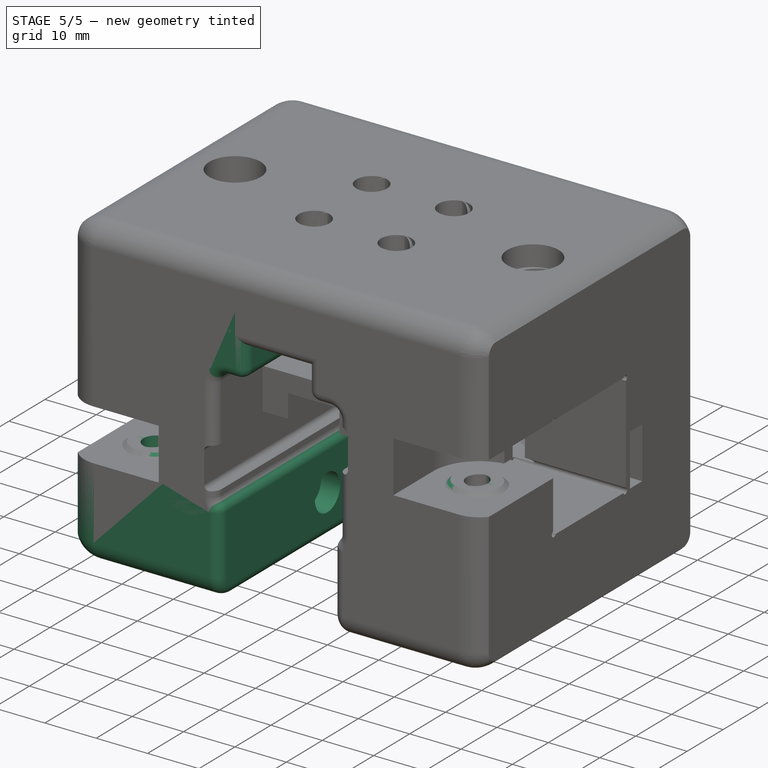
[diagram: stage 5 of 5 — iso view after this stage's code; geometry added in this stage tinted green]
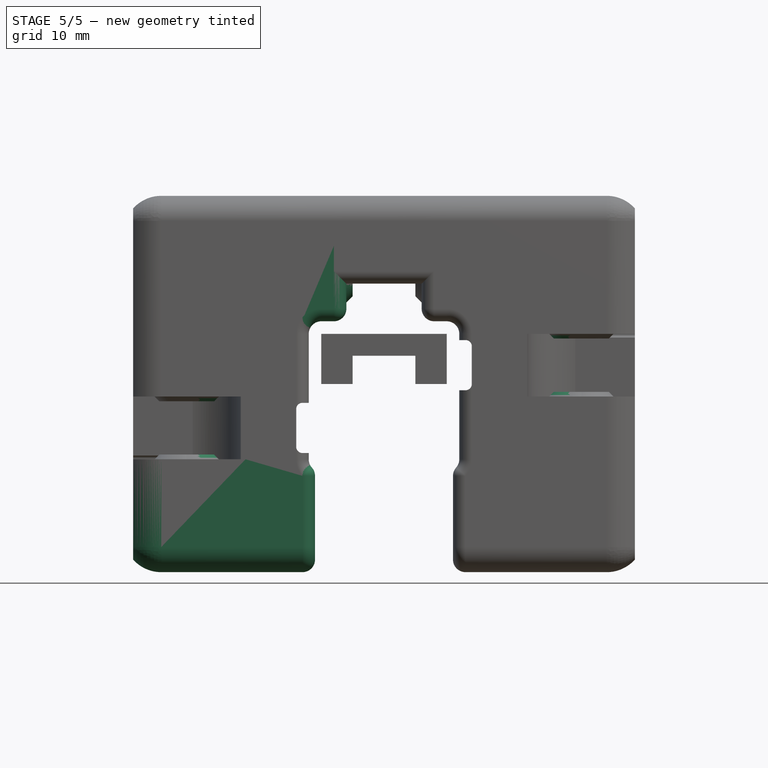
[diagram: stage 5 of 5 — front view after this stage's code; geometry added in this stage tinted green]
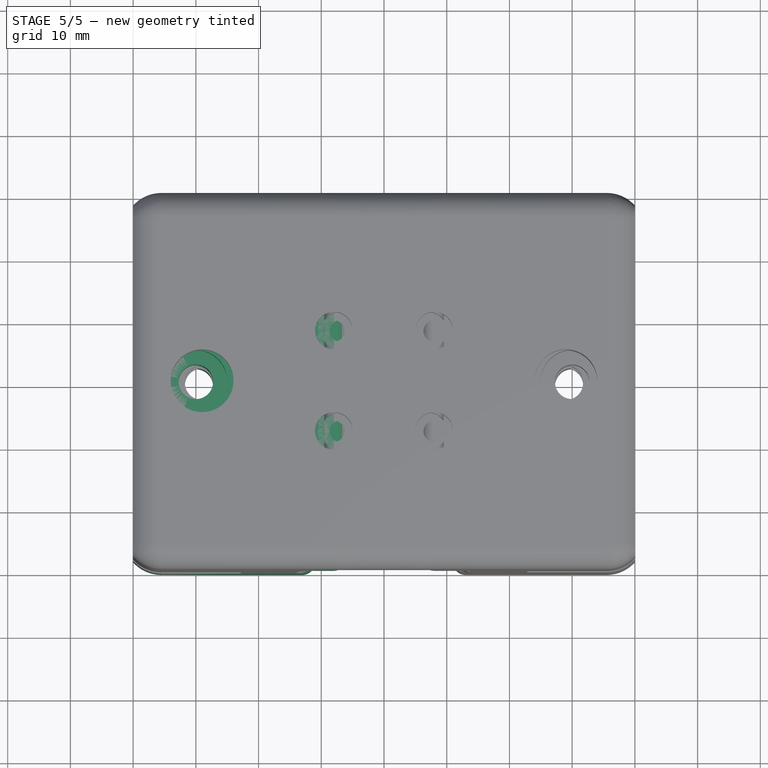
[diagram: stage 5 of 5 — top view after this stage's code; geometry added in this stage tinted green]
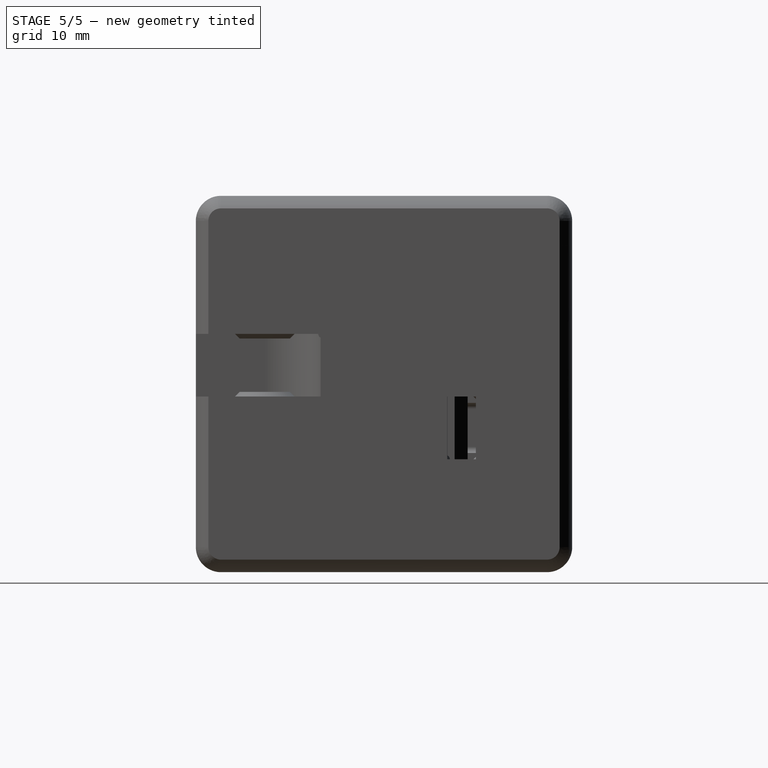
[diagram: stage 5 of 5 — right view after this stage's code; geometry added in this stage tinted green]
FEATURE [Sketcher::SketchObject] Sketch237
  ArcFitTolerance = 0
  AttachmentOffset = pos=(0,0,19) rot=(0,0,1;0rad)
  AttachmentSupport = -> [XZ_Plane251]
  FullyConstrained = true
  MakeInternals = false
  MapMode = 5
  Placement = pos=(0,-19,4.2e-15) rot=(1,0,0;1.5708rad)
  sketch-geometry (6):
    g0: LineSegment StartX=31.83 StartY=12.5 StartZ=0 EndX=31.83 EndY=-28 EndZ=0
    g1: LineSegment StartX=31.83 StartY=-28 StartZ=0 EndX=26.83 EndY=-28 EndZ=0
    g2: LineSegment StartX=26.83 StartY=-28 StartZ=0 EndX=26.83 EndY=-8 EndZ=0
    g3: LineSegment StartX=26.83 StartY=-8 StartZ=0 EndX=29.38 EndY=-8 EndZ=0
    g4: LineSegment StartX=29.38 StartY=-8 StartZ=0 EndX=29.38 EndY=12.5 EndZ=0
    g5: LineSegment StartX=29.38 StartY=12.5 StartZ=0 EndX=31.83 EndY=12.5 EndZ=0
  constraints (18):
    c: Vertical(g0)
    c: Coincident(g0,g1)
    c: Horizontal(g1)
    c: Coincident(g1,g2)
    c: Vertical(g2)
    c: Coincident(g2,g3)
    c: Horizontal(g3)
    c: Coincident(g3,g4)
    c: Coincident(g4,g5)
    c: Coincident(g5,g0)
    c: Horizontal(g5)
    c: DistanceY(g4,g4) = 20.5
    c: DistanceX(g5,g5) = 2.45
    c: DistanceX(g0) = 31.83
    c: DistanceY(g0) = -28
    c: DistanceX(g1,g1) = 5
    c: DistanceY(g4) = 12.5
    c: Vertical(g4)
FEATURE [Sketcher::SketchObject] Sketch238
  ArcFitTolerance = 0
  AttachmentOffset = pos=(0,0,-19) rot=(0,0,1;0rad)
  AttachmentSupport = -> [XZ_Plane251]
  FullyConstrained = true
  MakeInternals = false
  MapMode = 5
  Placement = pos=(0,19,-4.2e-15) rot=(1,0,0;1.5708rad)
  sketch-geometry (6):
    g0: LineSegment StartX=19 StartY=3 StartZ=0 EndX=19 EndY=-28 EndZ=0
    g1: LineSegment StartX=19 StartY=-28 StartZ=0 EndX=14 EndY=-28 EndZ=0
    g2: LineSegment StartX=14 StartY=-28 StartZ=0 EndX=14 EndY=-17.5 EndZ=0
    g3: LineSegment StartX=14 StartY=-17.5 StartZ=0 EndX=16.55 EndY=-17.5 EndZ=0
    g4: LineSegment StartX=16.55 StartY=-17.5 StartZ=0 EndX=16.55 EndY=3 EndZ=0
    g5: LineSegment StartX=16.55 StartY=3 StartZ=0 EndX=19 EndY=3 EndZ=0
  constraints (18):
    c: Vertical(g0)
    c: Coincident(g0,g1)
    c: Horizontal(g1)
    c: Coincident(g1,g2)
    c: Vertical(g2)
    c: Coincident(g2,g3)
    c: Horizontal(g3)
    c: Coincident(g3,g4)
    c: Vertical(g4)
    c: Coincident(g4,g5)
    c: Coincident(g5,g0)
    c: Horizontal(g5)
    c: DistanceX(g5,g5) = 2.45
    c: DistanceX(g0) = 19
    c: DistanceX(g1,g1) = 5
    c: DistanceY(g0) = 3
    c: DistanceY(g4,g4) = 20.5
    c: DistanceY(g0) = -28
FEATURE [Sketcher::SketchObject] Sketch239
  ArcFitTolerance = 0
  AttachmentOffset = pos=(0,0,-19) rot=(0,0,1;0rad)
  AttachmentSupport = -> [XZ_Plane251]
  FullyConstrained = true
  MakeInternals = false
  MapMode = 5
  Placement = pos=(0,19,-4.2e-15) rot=(1,0,0;1.5708rad)
  sketch-geometry (9):
    g0: GeomPoint [constr] X=19 Y=-5 Z=0
    g1: LineSegment StartX=19 StartY=-0.25 StartZ=0 EndX=19 EndY=-0.75 EndZ=0
    g2: LineSegment StartX=19 StartY=-0.75 StartZ=0 EndX=23 EndY=-0.75 EndZ=0
    g3: LineSegment StartX=23 StartY=-0.75 StartZ=0 EndX=23.5 EndY=-0.25 EndZ=0
    g4: LineSegment StartX=23.5 StartY=-0.25 StartZ=0 EndX=19 EndY=-0.25 EndZ=0
    g5: LineSegment StartX=19 StartY=-9.75 StartZ=0 EndX=19 EndY=-9.25 EndZ=0
    g6: LineSegment StartX=19 StartY=-9.25 StartZ=0 EndX=23 EndY=-9.25 EndZ=0
    g7: LineSegment StartX=23 StartY=-9.25 StartZ=0 EndX=23.5 EndY=-9.75 EndZ=0
    g8: LineSegment StartX=23.5 StartY=-9.75 StartZ=0 EndX=19 EndY=-9.75 EndZ=0
  constraints (25):
    c: DistanceX(g0) = 19
    c: DistanceY(g0) = -5
    c: Vertical(g1)
    c: Coincident(g1,g2)
    c: Horizontal(g2)
    c: Coincident(g2,g3)
    c: Coincident(g3,g4)
    c: Coincident(g4,g1)
    c: Horizontal(g4)
    c: Vertical(g5)
    c: Coincident(g5,g6)
    c: Horizontal(g6)
    c: Coincident(g6,g7)
    c: Coincident(g7,g8)
    c: Coincident(g8,g5)
    c: Horizontal(g8)
    c: Symmetric(g5,g1,g0)
    c: Vertical(g5,g1)
    c: DistanceY(g5,g5) = 0.5
    c: Angle(g7) = -0.785398
    c: DistanceX(g6,g6) = 4
    c: Equal(g1,g5)
    c: Perpendicular(g7,g3)
    c: Equal(g2,g6)
    c: DistanceY(g5,g1) = 9.5
FEATURE [PartDesign::Body] Body118  label="y-carriage-vslot-drv"
  AllowCompound = false
  Group = -> [Sketch227,Pad057,Sketch228,Pocket138,Sketch229,Pocket139,Sketch230,Sketch231,Sketch232,Sketch233,Sketch234,Revolution016,Mirrored030,Pocket142,Pocket143,Sketch235,Pocket144,Sketch236,Pocket145,Mirrored031,Sketch014,Pocket146,Sketch015,Pocket009,Sketch016,Sketch237,Sketch238,Sketch239,Chamfer001,Fillet,Fillet001]
  Origin = -> Origin252
  Tip = -> Fillet001
FEATURE [PartDesign::FeatureBase] Clone068
  BaseFeature = -> Body118
  Suppressed = false
FEATURE [Sketcher::SketchObject] Sketch242
  ArcFitTolerance = 0
  AttachmentOffset = pos=(0,0,19) rot=(0,0,1;0rad)
  AttachmentSupport = -> [XZ_Plane253]
  FullyConstrained = true
  MakeInternals = false
  MapMode = 5
  Placement = pos=(0,-19,4.2e-15) rot=(1,0,0;1.5708rad)
  sketch-geometry (10):
    g0: GeomPoint [constr] X=31.08 Y=-2e-16 Z=0
    g1: GeomPoint [constr] X=31.08 Y=5 Z=0
    g2: LineSegment StartX=31.08 StartY=-2e-16 StartZ=0 EndX=31.08 EndY=0.75 EndZ=0
    g3: LineSegment StartX=31.08 StartY=0.75 StartZ=0 EndX=35.08 EndY=0.75 EndZ=0
    g4: LineSegment StartX=35.08 StartY=0.75 StartZ=0 EndX=35.83 EndY=-2e-16 EndZ=0
    g5: LineSegment StartX=35.83 StartY=-2e-16 StartZ=0 EndX=31.08 EndY=-2e-16 EndZ=0
    g6: LineSegment StartX=31.08 StartY=10 StartZ=0 EndX=31.08 EndY=9.25 EndZ=0
    g7: LineSegment StartX=31.08 StartY=9.25 StartZ=0 EndX=35.08 EndY=9.25 EndZ=0
    g8: LineSegment StartX=35.08 StartY=9.25 StartZ=0 EndX=35.83 EndY=10 EndZ=0
    g9: LineSegment StartX=35.83 StartY=10 StartZ=0 EndX=31.08 EndY=10 EndZ=0
  constraints (26):
    c: Vertical(g1,g0)
    c: Coincident(g2,g0)
    c: Vertical(g2)
    c: Coincident(g2,g3)
    c: Horizontal(g3)
    c: Coincident(g3,g4)
    c: Coincident(g4,g5)
    c: Coincident(g5,g2)
    c: Horizontal(g5)
    c: Coincident(g6,g7)
    c: Horizontal(g7)
    c: Coincident(g7,g8)
    c: Coincident(g8,g9)
    c: Coincident(g9,g6)
    c: Vertical(g6)
    c: Horizontal(g9)
    c: Symmetric(g2,g6,g1)
    c: Equal(g2,g6)
    c: DistanceY(g-1,g1) = 5
    c: DistanceX(g1) = 31.08
    c: DistanceY(g2,g6) = 10
    c: DistanceX(g3,g3) = 4
    c: Angle(g4) = -0.785398
    c: Perpendicular(g4,g8)
    c: Equal(g9,g5)
    c: DistanceY(g2,g6) = 8.5
FEATURE [Sketcher::SketchObject] Sketch243
  ArcFitTolerance = 0
  AttachmentOffset = pos=(0,0,5) rot=(0,0,1;0rad)
  AttachmentSupport = -> [XY_Plane253]
  FullyConstrained = true
  MakeInternals = false
  MapMode = 5
  Placement = pos=(0,0,5) rot=(0,0,1;0rad)
  sketch-geometry (5):
    g0: ArcOfCircle CenterX=31.08 CenterY=-19 CenterZ=0 NormalX=0 NormalY=0 NormalZ=1 AngleXU=0 Radius=9 StartAngle=1.5708 EndAngle=3.14159
    g1: LineSegment StartX=22.08 StartY=-19 StartZ=0 EndX=22.08 EndY=-30 EndZ=0
    g2: LineSegment StartX=22.08 StartY=-30 StartZ=0 EndX=40.08 EndY=-30 EndZ=0
    g3: LineSegment StartX=40.08 StartY=-30 StartZ=0 EndX=40.08 EndY=-10 EndZ=0
    g4: LineSegment StartX=40.08 StartY=-10 StartZ=0 EndX=31.08 EndY=-10 EndZ=0
  constraints (14):
    c: Diameter(g0) = 18
    c: Vertical(g1)
    c: Coincident(g2,g1)
    c: Horizontal(g2)
    c: Coincident(g3,g2)
    c: Vertical(g3)
    c: Coincident(g4,g3)
    c: Horizontal(g4)
    c: Tangent(g0,g1) = -1.5708
    c: Tangent(g0,g4) = -1.5708
    c: Tangent(g3,g0)
    c: DistanceY(g1) = -30
    c: DistanceY(g0) = -19
    c: DistanceX(g0) = 31.08
FEATURE [PartDesign::Pocket] Pocket148
  BaseFeature = -> Clone068
  Direction = (0,0,-1)
  Length = 10
  Length2 = 5
  Midplane = true
  Profile = -> Sketch243
  ReferenceAxis = -> Sketch243 [N_Axis]
  Suppressed = false
  Type = 0
FEATURE [Sketcher::SketchObject] Sketch244
  ArcFitTolerance = 0
  AttachmentOffset = pos=(0,0,-5) rot=(0,0,1;0rad)
  AttachmentSupport = -> [XY_Plane253]
  FullyConstrained = true
  MakeInternals = false
  MapMode = 5
  Placement = pos=(0,0,-5) rot=(0,0,1;0rad)
  sketch-geometry (10):
    g0: ArcOfCircle CenterX=19 CenterY=19 CenterZ=0 NormalX=0 NormalY=0 NormalZ=1 AngleXU=0 Radius=9 StartAngle=3.14159 EndAngle=5.25009
    g1: LineSegment StartX=10 StartY=19 StartZ=0 EndX=10 EndY=30 EndZ=0
    g2: LineSegment StartX=10 StartY=30 StartZ=0 EndX=28 EndY=30 EndZ=0
    g3: LineSegment StartX=28 StartY=30 StartZ=0 EndX=28 EndY=19 EndZ=0
    g4: LineSegment StartX=23.6095 StartY=11.27 StartZ=0 EndX=40 EndY=11.27 EndZ=0
    g5: LineSegment StartX=40 StartY=11.27 StartZ=0 EndX=40 EndY=14.65 EndZ=0
    g6: LineSegment StartX=40 StartY=14.65 StartZ=0 EndX=26.8789 EndY=14.65 EndZ=0
    g7: ArcOfCircle CenterX=19 CenterY=19 CenterZ=0 NormalX=0 NormalY=0 NormalZ=1 AngleXU=0 Radius=9 StartAngle=5.77873 EndAngle=6.28319
    g8: GeomPoint [constr] X=19 Y=12.9 Z=0
    g9: Circle [constr] CenterX=19 CenterY=19 CenterZ=0 NormalX=0 NormalY=0 NormalZ=1 AngleXU=0 Radius=6.1
  constraints (27):
    c: Diameter(g0) = 18
    c: Vertical(g1)
    c: Coincident(g2,g1)
    c: Horizontal(g2)
    c: Coincident(g3,g2)
    c: Vertical(g3)
    c: DistanceY(g2) = 30
    c: Tangent(g0,g1) = 1.5708
    c: Horizontal(g4)
    c: Coincident(g5,g4)
    c: Vertical(g5)
    c: Coincident(g6,g5)
    c: Horizontal(g6)
    c: Equal(g0,g7)
    c: Coincident(g0,g4)
    c: Coincident(g7,g6)
    c: Coincident(g0,g7)
    c: Tangent(g7,g3) = 1.5708
    c: DistanceX(g5) = 40
    c: Vertical(g8,g0)
    c: DistanceY(g0,g8) = 1.63
    c: DistanceY(g8,g6) = 1.75
    c: Coincident(g9,g0)
    c: Diameter(g9) = 12.2
    c: PointOnObject(g8,g9)
    c: DistanceX(g0) = 19
    c: DistanceY(g0) = 19
FEATURE [PartDesign::Pocket] Pocket149
  BaseFeature = -> Pocket148
  Direction = (0,0,-1)
  Length = 10
  Length2 = 5
  Midplane = true
  Profile = -> Sketch244
  ReferenceAxis = -> Sketch244 [N_Axis]
  Suppressed = false
  Type = 0
FEATURE [PartDesign::Revolution] Revolution017
  Angle = 360
  Angle2 = 60
  Axis = (0,2e-16,1)
  Base = (31.08,-19,4e-15)
  BaseFeature = -> Pocket149
  Profile = -> Sketch242
  ReferenceAxis = -> Sketch242 [Edge1]
  Reversed = true
  Suppressed = false
  Type = 0
FEATURE [Sketcher::SketchObject] Sketch245
  ArcFitTolerance = 0
  AttachmentOffset = pos=(0,0,19) rot=(0,0,1;0rad)
  AttachmentSupport = -> [XZ_Plane253]
  FullyConstrained = true
  MakeInternals = false
  MapMode = 5
  Placement = pos=(0,-19,4.2e-15) rot=(1,0,0;1.5708rad)
  sketch-geometry (6):
    g0: LineSegment StartX=31.08 StartY=12.5 StartZ=0 EndX=31.08 EndY=-28 EndZ=0
    g1: LineSegment StartX=31.08 StartY=-28 StartZ=0 EndX=26.08 EndY=-28 EndZ=0
    g2: LineSegment StartX=26.08 StartY=-28 StartZ=0 EndX=26.08 EndY=-8 EndZ=0
    g3: LineSegment StartX=26.08 StartY=-8 StartZ=0 EndX=28.63 EndY=-8 EndZ=0
    g4: LineSegment StartX=28.63 StartY=-8 StartZ=0 EndX=28.63 EndY=12.5 EndZ=0
    g5: LineSegment StartX=28.63 StartY=12.5 StartZ=0 EndX=31.08 EndY=12.5 EndZ=0
  constraints (18):
    c: Vertical(g0)
    c: Coincident(g0,g1)
    c: Horizontal(g1)
    c: Coincident(g1,g2)
    c: Vertical(g2)
    c: Coincident(g2,g3)
    c: Horizontal(g3)
    c: Coincident(g3,g4)
    c: Coincident(g4,g5)
    c: Coincident(g5,g0)
    c: Horizontal(g5)
    c: DistanceY(g4,g4) = 20.5
    c: DistanceX(g5,g5) = 2.45
    c: DistanceX(g0) = 31.08
    c: DistanceY(g0) = -28
    c: DistanceX(g1,g1) = 5
    c: DistanceY(g4) = 12.5
    c: Vertical(g4)
FEATURE [Sketcher::SketchObject] Sketch246
  ArcFitTolerance = 0
  AttachmentOffset = pos=(0,0,-19) rot=(0,0,1;0rad)
  AttachmentSupport = -> [XZ_Plane253]
  FullyConstrained = true
  MakeInternals = false
  MapMode = 5
  Placement = pos=(0,19,-4.2e-15) rot=(1,0,0;1.5708rad)
  sketch-geometry (6):
    g0: LineSegment StartX=19 StartY=3 StartZ=0 EndX=19 EndY=-28 EndZ=0
    g1: LineSegment StartX=19 StartY=-28 StartZ=0 EndX=14 EndY=-28 EndZ=0
    g2: LineSegment StartX=14 StartY=-28 StartZ=0 EndX=14 EndY=-17.5 EndZ=0
    g3: LineSegment StartX=14 StartY=-17.5 StartZ=0 EndX=16.55 EndY=-17.5 EndZ=0
    g4: LineSegment StartX=16.55 StartY=-17.5 StartZ=0 EndX=16.55 EndY=3 EndZ=0
    g5: LineSegment StartX=16.55 StartY=3 StartZ=0 EndX=19 EndY=3 EndZ=0
  constraints (18):
    c: Vertical(g0)
    c: Coincident(g0,g1)
    c: Horizontal(g1)
    c: Coincident(g1,g2)
    c: Vertical(g2)
    c: Coincident(g2,g3)
    c: Horizontal(g3)
    c: Coincident(g3,g4)
    c: Vertical(g4)
    c: Coincident(g4,g5)
    c: Coincident(g5,g0)
    c: Horizontal(g5)
    c: DistanceX(g5,g5) = 2.45
    c: DistanceX(g0) = 19
    c: DistanceX(g1,g1) = 5
    c: DistanceY(g0) = 3
    c: DistanceY(g4,g4) = 20.5
    c: DistanceY(g0) = -28
FEATURE [Sketcher::SketchObject] Sketch247
  ArcFitTolerance = 0
  AttachmentOffset = pos=(0,0,-19) rot=(0,0,1;0rad)
  AttachmentSupport = -> [XZ_Plane253]
  FullyConstrained = true
  MakeInternals = false
  MapMode = 5
  Placement = pos=(0,19,-4.2e-15) rot=(1,0,0;1.5708rad)
  sketch-geometry (9):
    g0: GeomPoint [constr] X=19 Y=-5 Z=0
    g1: LineSegment StartX=19 StartY=-2e-16 StartZ=0 EndX=19 EndY=-0.75 EndZ=0
    g2: LineSegment StartX=19 StartY=-0.75 StartZ=0 EndX=23 EndY=-0.75 EndZ=0
    g3: LineSegment StartX=23 StartY=-0.75 StartZ=0 EndX=23.75 EndY=-2e-16 EndZ=0
    g4: LineSegment StartX=23.75 StartY=-2e-16 StartZ=0 EndX=19 EndY=-2e-16 EndZ=0
    g5: LineSegment StartX=19 StartY=-10 StartZ=0 EndX=19 EndY=-9.25 EndZ=0
    g6: LineSegment StartX=19 StartY=-9.25 StartZ=0 EndX=23 EndY=-9.25 EndZ=0
    g7: LineSegment StartX=23 StartY=-9.25 StartZ=0 EndX=23.75 EndY=-10 EndZ=0
    g8: LineSegment StartX=23.75 StartY=-10 StartZ=0 EndX=19 EndY=-10 EndZ=0
  constraints (25):
    c: DistanceX(g0) = 19
    c: DistanceY(g0) = -5
    c: Vertical(g1)
    c: Coincident(g1,g2)
    c: Horizontal(g2)
    c: Coincident(g2,g3)
    c: Coincident(g3,g4)
    c: Coincident(g4,g1)
    c: Horizontal(g4)
    c: Vertical(g5)
    c: Coincident(g5,g6)
    c: Horizontal(g6)
    c: Coincident(g6,g7)
    c: Coincident(g7,g8)
    c: Coincident(g8,g5)
    c: Horizontal(g8)
    c: Symmetric(g5,g1,g0)
    c: Vertical(g5,g1)
    c: Angle(g7) = -0.785398
    c: DistanceX(g6,g6) = 4
    c: Equal(g1,g5)
    c: Perpendicular(g7,g3)
    c: Equal(g2,g6)
    c: DistanceY(g5,g1) = 10
    c: DistanceY(g5,g1) = 8.5
FEATURE [PartDesign::Revolution] Revolution018
  Angle = 360
  Angle2 = 60
  Axis = (0,-2e-16,-1)
  Base = (19,19,-4.4e-15)
  BaseFeature = -> Revolution017
  Profile = -> Sketch247
  ReferenceAxis = -> Sketch247 [Edge1]
  Reversed = true
  Suppressed = false
  Type = 0
FEATURE [PartDesign::Groove] Groove007
  Angle = 360
  Angle2 = 60
  Axis = (0,-2e-16,-1)
  Base = (31.08,-19,12.5)
  BaseFeature = -> Revolution018
  Profile = -> Sketch245
  ReferenceAxis = -> Sketch245 [Edge1]
  Suppressed = false
  Type = 0
FEATURE [PartDesign::Groove] Groove008
  Angle = 360
  Angle2 = 60
  Axis = (0,-2e-16,-1)
  Base = (19,19,3)
  BaseFeature = -> Groove007
  Profile = -> Sketch246
  ReferenceAxis = -> Sketch246 [Edge1]
  Suppressed = false
  Type = 0
FEATURE [Sketcher::SketchObject] Sketch251
  ArcFitTolerance = 0
  AttachmentOffset = pos=(0,0,-19) rot=(0,0,1;0rad)
  AttachmentSupport = -> [XZ_Plane254]
  FullyConstrained = true
  MakeInternals = false
  MapMode = 5
  Placement = pos=(0,19,-4.2e-15) rot=(1,0,0;1.5708rad)
  sketch-geometry (6):
    g0: LineSegment StartX=19 StartY=12.5 StartZ=0 EndX=19 EndY=-28 EndZ=0
    g1: LineSegment StartX=19 StartY=-28 StartZ=0 EndX=14 EndY=-28 EndZ=0
    g2: LineSegment StartX=14 StartY=-28 StartZ=0 EndX=14 EndY=-8 EndZ=0
    g3: LineSegment StartX=14 StartY=-8 StartZ=0 EndX=16.55 EndY=-8 EndZ=0
    g4: LineSegment StartX=16.55 StartY=-8 StartZ=0 EndX=16.55 EndY=12.5 EndZ=0
    g5: LineSegment StartX=16.55 StartY=12.5 StartZ=0 EndX=19 EndY=12.5 EndZ=0
  constraints (18):
    c: Vertical(g0)
    c: Coincident(g0,g1)
    c: Horizontal(g1)
    c: Coincident(g1,g2)
    c: Vertical(g2)
    c: Coincident(g2,g3)
    c: Horizontal(g3)
    c: Coincident(g3,g4)
    c: Coincident(g4,g5)
    c: Coincident(g5,g0)
    c: Horizontal(g5)
    c: DistanceY(g4,g4) = 20.5
    c: DistanceX(g5,g5) = 2.45
    c: DistanceX(g0) = 19
    c: DistanceY(g0) = -28
    c: DistanceX(g1,g1) = 5
    c: DistanceY(g4) = 12.5
    c: Vertical(g4)
FEATURE [Sketcher::SketchObject] Sketch252
  ArcFitTolerance = 0
  AttachmentOffset = pos=(0,0,19) rot=(0,0,1;0rad)
  AttachmentSupport = -> [XZ_Plane254]
  FullyConstrained = true
  MakeInternals = false
  MapMode = 5
  Placement = pos=(0,-19,4.2e-15) rot=(1,0,0;1.5708rad)
  sketch-geometry (6):
    g0: LineSegment StartX=31.08 StartY=3 StartZ=0 EndX=31.08 EndY=-28 EndZ=0
    g1: LineSegment StartX=31.08 StartY=-28 StartZ=0 EndX=26.08 EndY=-28 EndZ=0
    g2: LineSegment StartX=26.08 StartY=-28 StartZ=0 EndX=26.08 EndY=-17.5 EndZ=0
    g3: LineSegment StartX=26.08 StartY=-17.5 StartZ=0 EndX=28.63 EndY=-17.5 EndZ=0
    g4: LineSegment StartX=28.63 StartY=-17.5 StartZ=0 EndX=28.63 EndY=3 EndZ=0
    g5: LineSegment StartX=28.63 StartY=3 StartZ=0 EndX=31.08 EndY=3 EndZ=0
  constraints (18):
    c: Vertical(g0)
    c: Coincident(g0,g1)
    c: Horizontal(g1)
    c: Coincident(g1,g2)
    c: Vertical(g2)
    c: Coincident(g2,g3)
    c: Horizontal(g3)
    c: Coincident(g3,g4)
    c: Vertical(g4)
    c: Coincident(g4,g5)
    c: Coincident(g5,g0)
    c: Horizontal(g5)
    c: DistanceX(g5,g5) = 2.45
    c: DistanceX(g0) = 31.08
    c: DistanceX(g1,g1) = 5
    c: DistanceY(g0) = 3
    c: DistanceY(g4,g4) = 20.5
    c: DistanceY(g0) = -28
FEATURE [Sketcher::SketchObject] Sketch253
  ArcFitTolerance = 0
  AttachmentOffset = pos=(0,0,-19) rot=(0,0,1;0rad)
  AttachmentSupport = -> [XZ_Plane254]
  FullyConstrained = true
  MakeInternals = false
  MapMode = 5
  Placement = pos=(0,19,-4.2e-15) rot=(1,0,0;1.5708rad)
  sketch-geometry (9):
    g0: GeomPoint [constr] X=19 Y=5 Z=0
    g1: LineSegment StartX=19 StartY=10 StartZ=0 EndX=19 EndY=9.25 EndZ=0
    g2: LineSegment StartX=19 StartY=9.25 StartZ=0 EndX=23 EndY=9.25 EndZ=0
    g3: LineSegment StartX=23 StartY=9.25 StartZ=0 EndX=23.75 EndY=10 EndZ=0
    g4: LineSegment StartX=23.75 StartY=10 StartZ=0 EndX=19 EndY=10 EndZ=0
    g5: LineSegment StartX=19 StartY=1e-16 StartZ=0 EndX=19 EndY=0.75 EndZ=0
    g6: LineSegment StartX=19 StartY=0.75 StartZ=0 EndX=23 EndY=0.75 EndZ=0
    g7: LineSegment StartX=23 StartY=0.75 StartZ=0 EndX=23.75 EndY=1e-16 EndZ=0
    g8: LineSegment StartX=23.75 StartY=1e-16 StartZ=0 EndX=19 EndY=1e-16 EndZ=0
  constraints (25):
    c: DistanceX(g0) = 19
    c: DistanceY(g0) = 5
    c: Vertical(g1)
    c: Coincident(g1,g2)
    c: Horizontal(g2)
    c: Coincident(g2,g3)
    c: Coincident(g3,g4)
    c: Coincident(g4,g1)
    c: Horizontal(g4)
    c: Vertical(g5)
    c: Coincident(g5,g6)
    c: Horizontal(g6)
    c: Coincident(g6,g7)
    c: Coincident(g7,g8)
    c: Coincident(g8,g5)
    c: Horizontal(g8)
    c: Symmetric(g5,g1,g0)
    c: Vertical(g5,g1)
    c: Angle(g7) = -0.785398
    c: DistanceX(g6,g6) = 4
    c: Equal(g1,g5)
    c: Perpendicular(g7,g3)
    c: Equal(g2,g6)
    c: DistanceY(g5,g1) = 10
    c: DistanceY(g5,g1) = 8.5
FEATURE [PartDesign::Revolution] Revolution020
  Angle = 360
  Angle2 = 60
  Axis = (0,-2e-16,-1)
  Base = (19,19,10)
  BaseFeature = -> Revolution019
  Profile = -> Sketch253
  ReferenceAxis = -> Sketch253 [Edge1]
  Reversed = true
  Suppressed = false
  Type = 0
FEATURE [PartDesign::Groove] Groove009
  Angle = 360
  Angle2 = 60
  Axis = (0,-2e-16,-1)
  Base = (19,19,12.5)
  BaseFeature = -> Revolution020
  Profile = -> Sketch251
  ReferenceAxis = -> Sketch251 [Edge1]
  Suppressed = false
  Type = 0
FEATURE [PartDesign::Groove] Groove010
  Angle = 360
  Angle2 = 60
  Axis = (0,-2e-16,-1)
  Base = (31.08,-19,3)
  BaseFeature = -> Groove009
  Profile = -> Sketch252
  ReferenceAxis = -> Sketch252 [Edge1]
  Suppressed = false
  Type = 0
FEATURE [Sketcher::SketchObject] Sketch289
  ArcFitTolerance = 0
  AttachmentSupport = -> [XZ_Plane253]
  FullyConstrained = true
  MakeInternals = false
  MapMode = 5
  Placement = pos=(0,0,0) rot=(1,0,0;1.5708rad)
  sketch-geometry (9):
    g0: LineSegment StartX=12 StartY=9 StartZ=0 EndX=13 EndY=9 EndZ=0
    g1: LineSegment StartX=14 StartY=8 StartZ=0 EndX=14 EndY=2 EndZ=0
    g2: LineSegment StartX=13 StartY=1 StartZ=0 EndX=12 EndY=1 EndZ=0
    g3: LineSegment StartX=12 StartY=1 StartZ=0 EndX=12 EndY=9 EndZ=0
    g4: ArcOfCircle CenterX=13 CenterY=8 CenterZ=0 NormalX=0 NormalY=0 NormalZ=1 AngleXU=0 Radius=1 StartAngle=0 EndAngle=1.5708
    g5: GeomPoint [constr] X=14 Y=9 Z=0
    g6: ArcOfCircle CenterX=13 CenterY=2 CenterZ=0 NormalX=0 NormalY=0 NormalZ=1 AngleXU=0 Radius=1 StartAngle=4.71239 EndAngle=6.28319
    g7: GeomPoint [constr] X=14 Y=1 Z=0
    g8: GeomPoint [constr] X=12 Y=5 Z=0
  constraints (21):
    c: Coincident(g2,g3)
    c: Coincident(g3,g0)
    c: Horizontal(g0)
    c: Horizontal(g2)
    c: Vertical(g1)
    c: Vertical(g3)
    c: PointOnObject(g5,g0)
    c: PointOnObject(g5,g1)
    c: Tangent(g0,g4) = 1.5708
    c: Tangent(g1,g4) = 1.5708
    c: PointOnObject(g7,g1)
    c: PointOnObject(g7,g2)
    c: Tangent(g1,g6) = 1.5708
    c: Tangent(g2,g6) = 1.5708
    c: Equal(g4,g6)
    c: Radius(g6) = 1
    c: DistanceY(g3,g3) = 8
    c: DistanceX(g2,g2) = 1
    c: Symmetric(g2,g0,g8)
    c: DistanceY(g8) = 5
    c: DistanceX(g8) = 12
FEATURE [PartDesign::Pocket] Pocket179
  BaseFeature = -> Groove008
  Direction = (0,1,-2e-16)
  Length = 5
  Length2 = 5
  Midplane = true
  Profile = -> Sketch289
  ReferenceAxis = -> Sketch289 [N_Axis]
  Suppressed = false
  Type = 1
FEATURE [PartDesign::Body] Body120  label="y-carriage-left"
  AllowCompound = false
  Group = -> [Clone068,Sketch242,Sketch243,Sketch244,Sketch245,Sketch246,Sketch247,Pocket148,Pocket149,Revolution017,Revolution018,Groove007,Groove008,Sketch289,Pocket179]
  Origin = -> Origin254
  Tip = -> Pocket179
FEATURE [Sketcher::SketchObject] Sketch290
  ArcFitTolerance = 0
  AttachmentSupport = -> [XZ_Plane254]
  FullyConstrained = true
  MakeInternals = false
  MapMode = 5
  Placement = pos=(0,0,0) rot=(1,0,0;1.5708rad)
  sketch-geometry (9):
    g0: LineSegment StartX=12 StartY=-1 StartZ=0 EndX=13 EndY=-1 EndZ=0
    g1: LineSegment StartX=14 StartY=-2 StartZ=0 EndX=14 EndY=-8 EndZ=0
    g2: LineSegment StartX=13 StartY=-9 StartZ=0 EndX=12 EndY=-9 EndZ=0
    g3: LineSegment StartX=12 StartY=-9 StartZ=0 EndX=12 EndY=-1 EndZ=0
    g4: ArcOfCircle CenterX=13 CenterY=-2 CenterZ=0 NormalX=0 NormalY=0 NormalZ=1 AngleXU=0 Radius=1 StartAngle=0 EndAngle=1.5708
    g5: GeomPoint [constr] X=14 Y=-1 Z=0
    g6: ArcOfCircle CenterX=13 CenterY=-8 CenterZ=0 NormalX=0 NormalY=0 NormalZ=1 AngleXU=0 Radius=1 StartAngle=4.71239 EndAngle=6.28319
    g7: GeomPoint [constr] X=14 Y=-9 Z=0
    g8: GeomPoint [constr] X=12 Y=-5 Z=0
  constraints (21):
    c: Coincident(g2,g3)
    c: Coincident(g3,g0)
    c: Horizontal(g0)
    c: Horizontal(g2)
    c: Vertical(g1)
    c: Vertical(g3)
    c: DistanceX(g0,g5) = 2
    c: DistanceY(g3,g3) = 8
    c: PointOnObject(g5,g0)
    c: PointOnObject(g5,g1)
    c: Tangent(g0,g4) = 1.5708
    c: Tangent(g1,g4) = 1.5708
    c: PointOnObject(g7,g1)
    c: PointOnObject(g7,g2)
    c: Tangent(g1,g6) = 1.5708
    c: Tangent(g2,g6) = 1.5708
    c: Equal(g6,g4)
    c: Radius(g4) = 1
    c: Symmetric(g2,g0,g8)
    c: DistanceX(g8) = 12
    c: DistanceY(g8) = -5
FEATURE [PartDesign::Pocket] Pocket180
  BaseFeature = -> Groove010
  Direction = (0,1,-2e-16)
  Length = 5
  Length2 = 5
  Midplane = true
  Profile = -> Sketch290
  ReferenceAxis = -> Sketch290 [N_Axis]
  Suppressed = false
  Type = 1
FEATURE [PartDesign::Body] Body121
  AllowCompound = false
  Group = -> [Clone069,Sketch248,Sketch249,Sketch250,Sketch251,Sketch252,Sketch253,Pocket150,Pocket151,Revolution019,Revolution020,Groove009,Groove010,Sketch290,Pocket180]
  Origin = -> Origin255
  Tip = -> Pocket180
FEATURE [Part::Mirroring] Part__Mirroring056  label="y-carriage-right"
  Base = (2.274e-13,-1.6e-14,3.1012e-06)
  Normal = (1,0,-1.19209e-07)
  Source = -> Body121
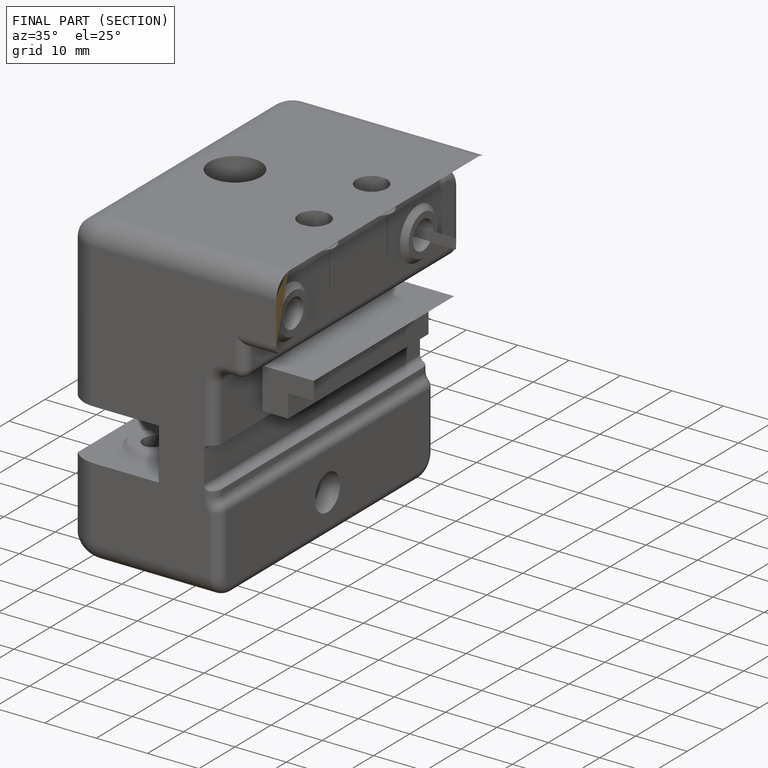
[diagram: finished part — half-section view (interior)]
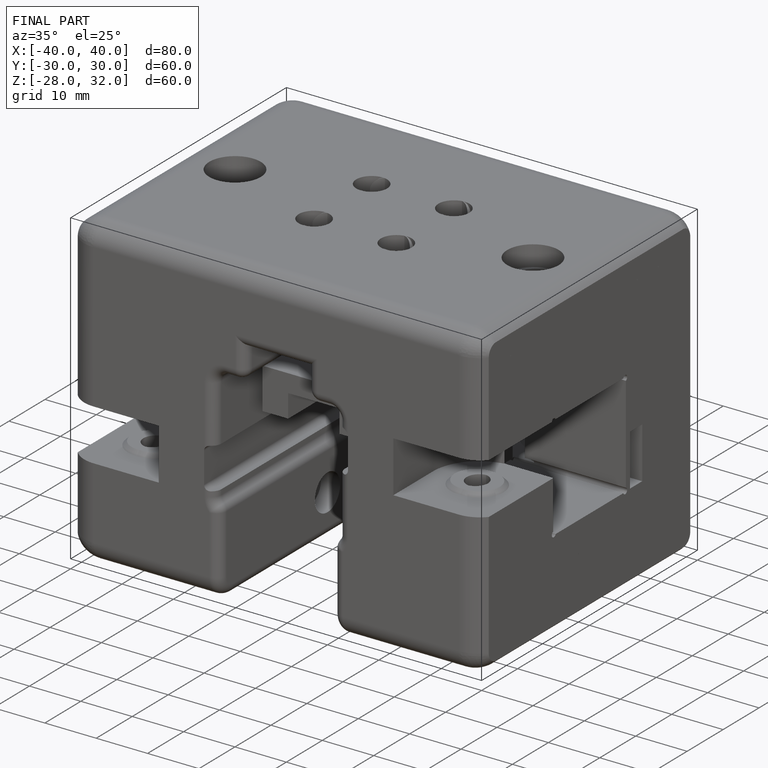
[diagram: finished part — iso view with bounding-box wireframe]
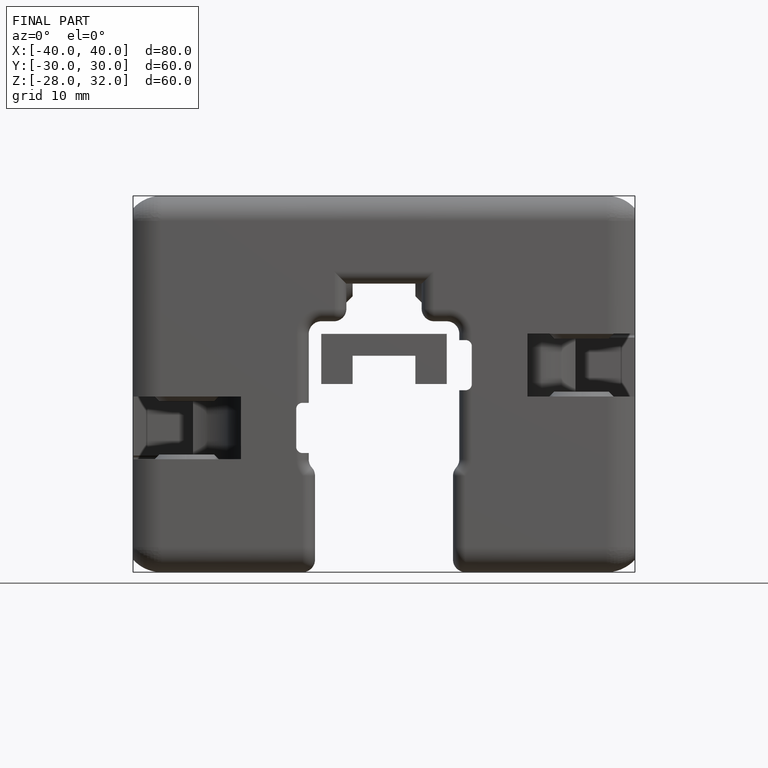
[diagram: finished part — front view with bounding-box wireframe]
